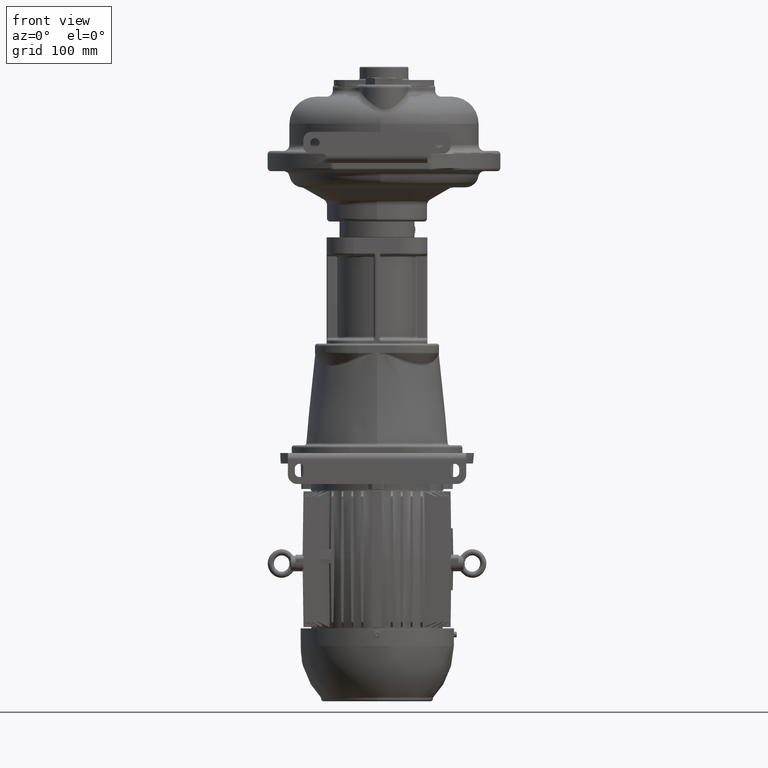
[diagram: clean part render]
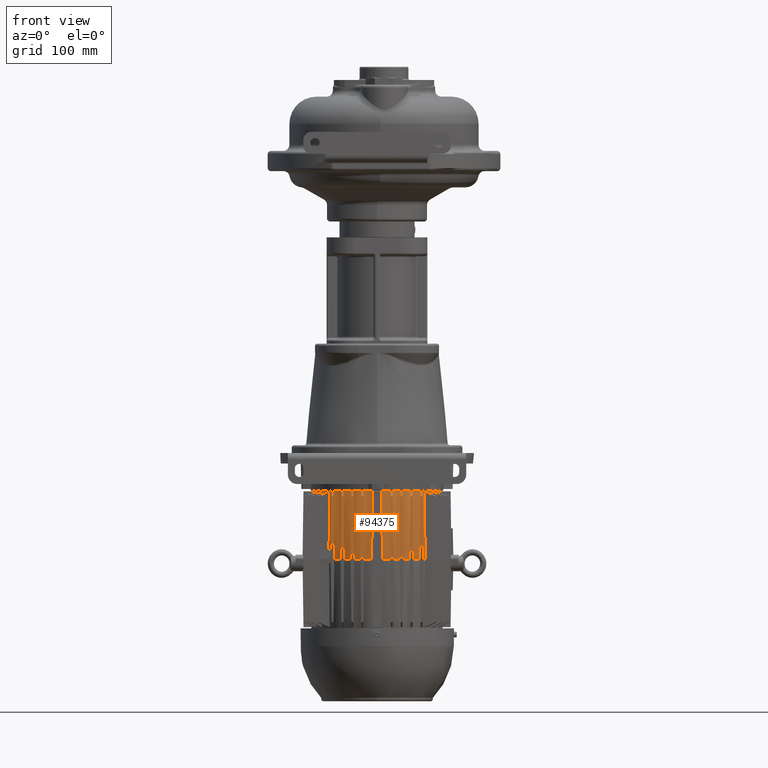
[diagram: same view with one face highlighted and labeled with its STEP entity id]
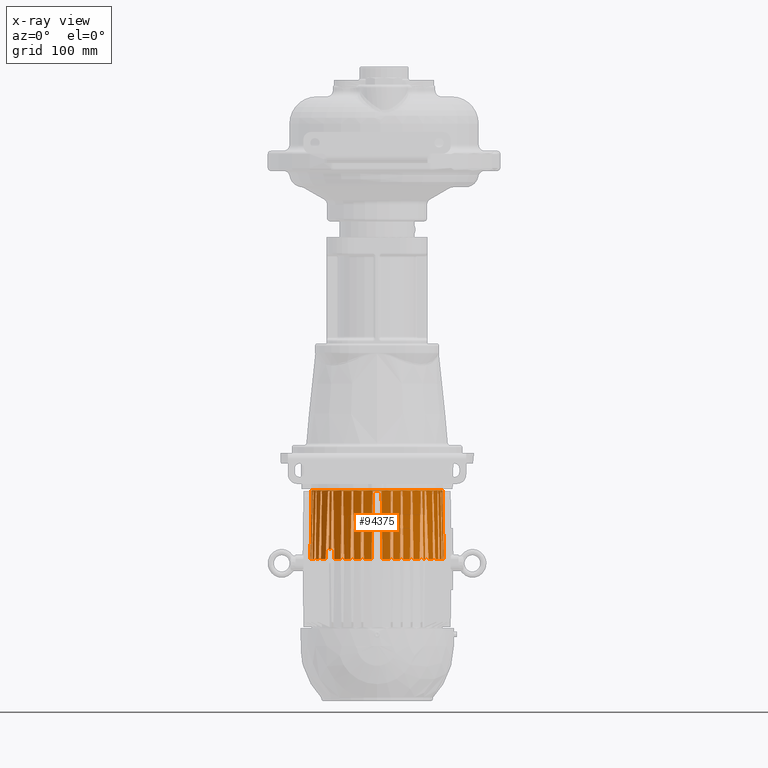
[diagram: x-ray of the same camera — body ghosted, the highlighted face saturated]
A machine part, front view. The second image highlights one B-rep face of the part: STEP entity #94375.
The next image is the same camera in x-ray: the body ghosted, the highlighted face saturated — about 0% of this face is hidden behind the body in this view.
In plain terms, the highlighted conical surface has half-angle 1 deg.
Its self-contained STEP definition (entity closure, byte-faithful):
#3388=CARTESIAN_POINT('',(-7.907279741479E1,3.415E1,-5.1755E2));
#3410=CARTESIAN_POINT('',(-7.907279741479E1,-3.415E1,-5.1755E2));
#3443=CARTESIAN_POINT('',(-4.695E1,-7.221099148330E1,-5.1755E2));
#3491=CARTESIAN_POINT('',(5.975E1,-6.203762802526E1,-5.1755E2));
#3503=CARTESIAN_POINT('',(6.203762802526E1,-5.975E1,-5.1755E2));
#3542=CARTESIAN_POINT('',(8.554957504864E1,-1.E1,-5.1755E2));
#3588=CARTESIAN_POINT('',(7.907279741479E1,3.415E1,-5.1755E2));
#3595=CARTESIAN_POINT('',(7.242031781905E1,4.662646628244E1,-5.1755E2));
#3768=CARTESIAN_POINT('',(0.E0,0.E0,-4.285E2));
#3769=DIRECTION('',(0.E0,0.E0,-1.E0));
#3770=DIRECTION('',(6.960351533574E-1,7.180077055929E-1,0.E0));
#3771=AXIS2_PLACEMENT_3D('',#3768,#3769,#3770);
#27019=CARTESIAN_POINT('',(5.998727688715E1,6.180822277549E1,-5.1755E2));
#27020=CARTESIAN_POINT('',(5.986147562036E1,6.168662273001E1,
-5.075314072305E2));
#27021=CARTESIAN_POINT('',(5.961090800909E1,6.144443021485E1,
-4.875769999875E2));
#27022=CARTESIAN_POINT('',(5.923817437612E1,6.108417666636E1,
-4.578947564084E2));
#27023=CARTESIAN_POINT('',(5.899173791780E1,6.084600603335E1,
-4.382707740820E2));
#27024=CARTESIAN_POINT('',(5.886903501633E1,6.072742239909E1,-4.285E2));
#27026=CARTESIAN_POINT('',(0.E0,0.E0,-5.1755E2));
#27027=DIRECTION('',(0.E0,0.E0,1.E0));
#27028=DIRECTION('',(7.202618427713E-1,6.937022977097E-1,0.E0));
#27029=AXIS2_PLACEMENT_3D('',#27026,#27027,#27028);
#27031=CARTESIAN_POINT('',(6.102020720370E1,5.860456225508E1,-4.3005E2));
#27032=CARTESIAN_POINT('',(6.113180820073E1,5.873019079957E1,
-4.396467656837E2));
#27033=CARTESIAN_POINT('',(6.135597387212E1,5.898254248988E1,
-4.589239136563E2));
#27034=CARTESIAN_POINT('',(6.169509330493E1,5.936433147055E1,
-4.880887774444E2));
#27035=CARTESIAN_POINT('',(6.192312643419E1,5.962107647209E1,
-5.077015305023E2));
#27036=CARTESIAN_POINT('',(6.203762802526E1,5.975E1,-5.1755E2));
#27038=CARTESIAN_POINT('',(0.E0,0.E0,-4.3005E2));
#27039=DIRECTION('',(0.E0,0.E0,1.E0));
#27040=DIRECTION('',(7.475446730937E-1,6.642115338725E-1,0.E0));
#27041=AXIS2_PLACEMENT_3D('',#27038,#27039,#27040);
#27043=CARTESIAN_POINT('',(6.488847226443E1,5.557362868339E1,-4.7755E2));
#27044=CARTESIAN_POINT('',(6.470470052036E1,5.564398465508E1,
-4.721755066675E2));
#27045=CARTESIAN_POINT('',(6.433797869093E1,5.578385237949E1,
-4.614910098977E2));
#27046=CARTESIAN_POINT('',(6.379044026583E1,5.599110823851E1,
-4.456587328971E2));
#27047=CARTESIAN_POINT('',(6.342707193666E1,5.612760785442E1,
-4.352315259674E2));
#27048=CARTESIAN_POINT('',(6.324581552125E1,5.619543774492E1,-4.3005E2));
#27050=CARTESIAN_POINT('',(6.706211516945E1,5.405E1,-5.1755E2));
#27051=CARTESIAN_POINT('',(6.691348231328E1,5.410901575819E1,
-5.130417856826E2));
#27052=CARTESIAN_POINT('',(6.661675135678E1,5.422649065666E1,
-5.040678770946E2));
#27053=CARTESIAN_POINT('',(6.617329900634E1,5.440102621114E1,
-4.907351044623E2));
#27054=CARTESIAN_POINT('',(6.587873977633E1,5.451627928991E1,
-4.819309207020E2));
#27055=CARTESIAN_POINT('',(6.573173579161E1,5.457362868339E1,-4.7755E2));
#27057=CARTESIAN_POINT('',(0.E0,0.E0,-5.1755E2));
#27058=DIRECTION('',(0.E0,0.E0,1.E0));
#27059=DIRECTION('',(8.408057049698E-1,5.413370174764E-1,0.E0));
#27060=AXIS2_PLACEMENT_3D('',#27057,#27058,#27059);
#27062=CARTESIAN_POINT('',(7.130533522862E1,4.553580538681E1,-4.3005E2));
#27063=CARTESIAN_POINT('',(7.142774431091E1,4.565546250635E1,
-4.396500038997E2));
#27064=CARTESIAN_POINT('',(7.167354801017E1,4.589579475990E1,
-4.589314711998E2));
#27065=CARTESIAN_POINT('',(7.204518856201E1,4.625932770336E1,
-4.880964813310E2));
#27066=CARTESIAN_POINT('',(7.229494453114E1,4.650374521757E1,
-5.077048328992E2));
#27067=CARTESIAN_POINT('',(7.242031781905E1,4.662646628244E1,-5.1755E2));
#27069=CARTESIAN_POINT('',(0.E0,0.E0,-4.3005E2));
#27070=DIRECTION('',(0.E0,0.E0,1.E0));
#27071=DIRECTION('',(8.584365573358E-1,5.129197569108E-1,0.E0));
#27072=AXIS2_PLACEMENT_3D('',#27069,#27070,#27071);
#27074=CARTESIAN_POINT('',(7.505775969879E1,4.225E1,-5.1755E2));
#27075=CARTESIAN_POINT('',(7.478495977182E1,4.238033757925E1,
-5.075935111074E2));
#27076=CARTESIAN_POINT('',(7.424119370236E1,4.263896763869E1,
-4.878367584586E2));
#27077=CARTESIAN_POINT('',(7.343125956214E1,4.302072832137E1,
-4.586740563545E2));
#27078=CARTESIAN_POINT('',(7.289497885670E1,4.327121082905E1,
-4.395396952602E2));
#27079=CARTESIAN_POINT('',(7.262779348995E1,4.339543774492E1,-4.3005E2));
#27081=CARTESIAN_POINT('',(0.E0,0.E0,-5.1755E2));
#27082=DIRECTION('',(0.E0,0.E0,1.E0));
#27083=DIRECTION('',(9.180415272464E-1,3.964842421219E-1,0.E0));
#27084=AXIS2_PLACEMENT_3D('',#27081,#27082,#27083);
#27086=CARTESIAN_POINT('',(7.790159994918E1,3.300456225508E1,-4.3005E2));
#27087=CARTESIAN_POINT('',(7.803252242807E1,3.313235933617E1,
-4.398124202145E2));
#27088=CARTESIAN_POINT('',(7.829376367833E1,3.338753278264E1,
-4.593051221663E2));
#27089=CARTESIAN_POINT('',(7.867805108647E1,3.376336865275E1,
-4.880152277839E2));
#27090=CARTESIAN_POINT('',(7.894077279085E1,3.402063399537E1,
-5.076677297015E2));
#27091=CARTESIAN_POINT('',(7.907279741479E1,3.415E1,-5.1755E2));
#27093=CARTESIAN_POINT('',(0.E0,0.E0,-4.3005E2));
#27094=DIRECTION('',(0.E0,0.E0,1.E0));
#27095=DIRECTION('',(9.313538060151E-1,3.641154872030E-1,0.E0));
#27096=AXIS2_PLACEMENT_3D('',#27093,#27094,#27095);
#27098=CARTESIAN_POINT('',(8.081848893073E1,2.978425150904E1,-5.1755E2));
#27099=CARTESIAN_POINT('',(8.059165856828E1,2.989997277558E1,
-5.076490988157E2));
#27100=CARTESIAN_POINT('',(8.013945831416E1,3.012994354378E1,
-4.879664480863E2));
#27101=CARTESIAN_POINT('',(7.946564696526E1,3.047045715194E1,
-4.588025159611E2));
#27102=CARTESIAN_POINT('',(7.901934452361E1,3.069456702317E1,
-4.395947429231E2));
#27103=CARTESIAN_POINT('',(7.879693765521E1,3.080589262548E1,-4.3005E2));
#27105=CARTESIAN_POINT('',(0.E0,0.E0,-5.1755E2));
#27106=DIRECTION('',(0.E0,0.E0,1.E0));
#27107=DIRECTION('',(9.687919684441E-1,2.478752143281E-1,0.E0));
#27108=AXIS2_PLACEMENT_3D('',#27105,#27106,#27107);
#27110=CARTESIAN_POINT('',(8.215677737334E1,2.020456225508E1,-4.3005E2));
#27111=CARTESIAN_POINT('',(8.229834092428E1,2.033015141872E1,
-4.396437573801E2));
#27112=CARTESIAN_POINT('',(8.258244770706E1,2.058245060752E1,
-4.589168947620E2));
#27113=CARTESIAN_POINT('',(8.301151302675E1,2.096424017613E1,
-4.880818034627E2));
#27114=CARTESIAN_POINT('',(8.329953609944E1,2.122103734861E1,
-5.076985418593E2));
#27115=CARTESIAN_POINT('',(8.344403688102E1,2.135E1,-5.1755E2));
#27117=CARTESIAN_POINT('',(0.E0,0.E0,-4.3005E2));
#27118=DIRECTION('',(0.E0,0.E0,1.E0));
#27119=DIRECTION('',(9.776291125538E-1,2.103362029875E-1,0.E0));
#27120=AXIS2_PLACEMENT_3D('',#27117,#27118,#27119);
#27122=CARTESIAN_POINT('',(8.418985801712E1,1.685383385173E1,
-5.019791301684E2));
#27123=CARTESIAN_POINT('',(8.402437614511E1,1.695990948263E1,
-4.938760117365E2));
#27124=CARTESIAN_POINT('',(8.369425993023E1,1.717109188396E1,
-4.777437861327E2));
#27125=CARTESIAN_POINT('',(8.320167439258E1,1.748494206438E1,
-4.537687679281E2));
#27126=CARTESIAN_POINT('',(8.287497026075E1,1.769226026473E1,
-4.379317286725E2));
#27127=CARTESIAN_POINT('',(8.271204748861E1,1.779543774492E1,-4.3005E2));
#27129=CARTESIAN_POINT('',(8.561432432442E1,6.814813433695E0,
-5.034035964757E2));
#27130=CARTESIAN_POINT('',(8.533864922042E1,1.021746928964E1,
-5.031279213717E2));
#27131=CARTESIAN_POINT('',(8.486060539381E1,1.356289837481E1,
-5.026498775451E2));
#27132=CARTESIAN_POINT('',(8.418985801712E1,1.685383385173E1,
-5.019791301684E2));
#27134=CARTESIAN_POINT('',(8.440192240164E1,5.854562255077E0,-4.3005E2));
#27135=CARTESIAN_POINT('',(8.453552810681E1,5.959993447025E0,
-4.381038897346E2));
#27136=CARTESIAN_POINT('',(8.480347949349E1,6.171697912061E0,
-4.542759957899E2));
#27137=CARTESIAN_POINT('',(8.520759936558E1,6.491766775614E0,
-4.787260592569E2));
#27138=CARTESIAN_POINT('',(8.547850381222E1,6.706848955566E0,
-4.951561889861E2));
#27139=CARTESIAN_POINT('',(8.561432432442E1,6.814813433695E0,
-5.034035964757E2));
#27141=CARTESIAN_POINT('',(8.577412522449E1,-6.941900275092E0,
-5.131117614719E2));
#27142=CARTESIAN_POINT('',(8.562023759017E1,-6.819458211412E0,
-5.037584110873E2));
#27143=CARTESIAN_POINT('',(8.531340526007E1,-6.575658822175E0,
-4.851345734755E2));
#27144=CARTESIAN_POINT('',(8.485602474256E1,-6.213234343200E0,
-4.574489641511E2));
#27145=CARTESIAN_POINT('',(8.455297390034E1,-5.973760305290E0,
-4.391555401656E2));
#27146=CARTESIAN_POINT('',(8.440192240164E1,-5.854562255077E0,-4.3005E2));
#27148=CARTESIAN_POINT('',(8.554392303055E1,-9.932999781522E0,
-5.167841839985E2));
#27149=CARTESIAN_POINT('',(8.554358946682E1,-9.929063323211E0,
-5.167391900741E2));
#27150=CARTESIAN_POINT('',(8.554315470757E1,-9.919185901924E0,
-5.166492081636E2));
#27151=CARTESIAN_POINT('',(8.554319806392E1,-9.898372197926E0,
-5.165144432592E2));
#27152=CARTESIAN_POINT('',(8.554393674860E1,-9.871438812300E0,
-5.163793223439E2));
#27153=CARTESIAN_POINT('',(8.554538974881E1,-9.838024512511E0,
-5.162428897954E2));
#27154=CARTESIAN_POINT('',(8.554757672630E1,-9.797912367485E0,
-5.161052857512E2));
#27155=CARTESIAN_POINT('',(8.555050653304E1,-9.750996565411E0,
-5.159668644851E2));
#27156=CARTESIAN_POINT('',(8.555420349561E1,-9.696902292617E0,
-5.158272324971E2));
#27157=CARTESIAN_POINT('',(8.555868453491E1,-9.635367581121E0,
-5.156864499843E2));
#27158=CARTESIAN_POINT('',(8.556398564098E1,-9.565860570069E0,
-5.155441028473E2));
#27159=CARTESIAN_POINT('',(8.557008722271E1,-9.488542037543E0,
-5.154012141406E2));
#27160=CARTESIAN_POINT('',(8.557698709257E1,-9.403262696266E0,
-5.152579175932E2));
#27161=CARTESIAN_POINT('',(8.558478951933E1,-9.308565303651E0,
-5.151124748170E2));
#27162=CARTESIAN_POINT('',(8.559353910931E1,-9.203724959677E0,
-5.149648034001E2));
#27163=CARTESIAN_POINT('',(8.560320991943E1,-9.088785689862E0,
-5.148158252096E2));
#27164=CARTESIAN_POINT('',(8.561384922762E1,-8.962847321755E0,
-5.146651688258E2));
#27165=CARTESIAN_POINT('',(8.562550920211E1,-8.824880502149E0,
-5.145125647504E2));
#27166=CARTESIAN_POINT('',(8.563815524641E1,-8.674788046983E0,
-5.143588138442E2));
#27167=CARTESIAN_POINT('',(8.565181179005E1,-8.511671338423E0,
-5.142038540523E2));
#27168=CARTESIAN_POINT('',(8.566647640937E1,-8.334830151371E0,
-5.140479341661E2));
#27169=CARTESIAN_POINT('',(8.568213951943E1,-8.143514585341E0,
-5.138913072995E2));
#27170=CARTESIAN_POINT('',(8.569877907816E1,-7.936970820188E0,
-5.137342891735E2));
#27171=CARTESIAN_POINT('',(8.571635520964E1,-7.714492423688E0,
-5.135772841088E2));
#27172=CARTESIAN_POINT('',(8.573481060851E1,-7.475402256378E0,
-5.134207607532E2));
#27173=CARTESIAN_POINT('',(8.575406709431E1,-7.219086744275E0,
-5.132652636042E2));
#27174=CARTESIAN_POINT('',(8.576737557819E1,-7.036313696590E0,
-5.131626663032E2));
#27175=CARTESIAN_POINT('',(8.577412522449E1,-6.941900275092E0,
-5.131117614719E2));
#27177=CARTESIAN_POINT('',(8.554957504864E1,-1.000000000002E1,
-5.175500000003E2));
#27178=CARTESIAN_POINT('',(8.554769950172E1,-9.977666588443E0,
-5.172947279378E2));
#27179=CARTESIAN_POINT('',(8.554581549623E1,-9.955333182282E0,
-5.170394559373E2));
#27180=CARTESIAN_POINT('',(8.554392303048E1,-9.932999781543E0,
-5.167841839987E2));
#27182=CARTESIAN_POINT('',(0.E0,0.E0,-5.1755E2));
#27183=DIRECTION('',(0.E0,0.E0,1.E0));
#27184=DIRECTION('',(9.811381555008E-1,-1.933078369350E-1,0.E0));
#27185=AXIS2_PLACEMENT_3D('',#27182,#27183,#27184);
#27187=CARTESIAN_POINT('',(8.271204748861E1,-1.779543774492E1,-4.3005E2));
#27188=CARTESIAN_POINT('',(8.290964950036E1,-1.767029822400E1,
-4.396094091685E2));
#27189=CARTESIAN_POINT('',(8.330612213387E1,-1.741859866486E1,
-4.588367408349E2));
#27190=CARTESIAN_POINT('',(8.390455387373E1,-1.703681794310E1,
-4.880009737251E2));
#27191=CARTESIAN_POINT('',(8.430606117239E1,-1.677941617648E1,
-5.076638970738E2));
#27192=CARTESIAN_POINT('',(8.450743926425E1,-1.665E1,-5.1755E2));
#27194=CARTESIAN_POINT('',(8.344403688102E1,-2.135E1,-5.1755E2));
#27195=CARTESIAN_POINT('',(8.329953609825E1,-2.122103734755E1,
-5.076985417786E2));
#27196=CARTESIAN_POINT('',(8.301151302398E1,-2.096424017366E1,
-4.880818032744E2));
#27197=CARTESIAN_POINT('',(8.258244770429E1,-2.058245060507E1,
-4.589168945744E2));
#27198=CARTESIAN_POINT('',(8.229834092309E1,-2.033015141767E1,
-4.396437572997E2));
#27199=CARTESIAN_POINT('',(8.215677737334E1,-2.020456225508E1,-4.3005E2));
#27201=CARTESIAN_POINT('',(0.E0,0.E0,-5.1755E2));
#27202=DIRECTION('',(0.E0,0.E0,1.E0));
#27203=DIRECTION('',(9.397302046939E-1,-3.419168647289E-1,0.E0));
#27204=AXIS2_PLACEMENT_3D('',#27201,#27202,#27203);
#27206=CARTESIAN_POINT('',(7.887889193877E1,-3.059543774492E1,-4.3005E2));
#27207=CARTESIAN_POINT('',(7.910579189013E1,-3.047063458265E1,
-4.395837147280E2));
#27208=CARTESIAN_POINT('',(7.956108451027E1,-3.021938358620E1,
-4.587767806866E2));
#27209=CARTESIAN_POINT('',(8.024837594124E1,-2.983760984149E1,
-4.879404805996E2));
#27210=CARTESIAN_POINT('',(8.070956509475E1,-2.957975559766E1,
-5.076379686864E2));
#27211=CARTESIAN_POINT('',(8.094088763413E1,-2.945E1,-5.1755E2));
#27213=CARTESIAN_POINT('',(7.907279741479E1,-3.415E1,-5.1755E2));
#27214=CARTESIAN_POINT('',(7.894077659717E1,-3.402063772503E1,
-5.076680146107E2));
#27215=CARTESIAN_POINT('',(7.867805977585E1,-3.376337715232E1,
-4.880158770656E2));
#27216=CARTESIAN_POINT('',(7.829375462179E1,-3.338752392683E1,
-4.593044456712E2));
#27217=CARTESIAN_POINT('',(7.803251845079E1,-3.313235545383E1,
-4.398121236426E2));
#27218=CARTESIAN_POINT('',(7.790159994918E1,-3.300456225508E1,-4.3005E2));
#27220=CARTESIAN_POINT('',(0.E0,0.E0,-5.1755E2));
#27221=DIRECTION('',(0.E0,0.E0,1.E0));
#27222=DIRECTION('',(8.714266169706E-1,-4.905258925228E-1,0.E0));
#27223=AXIS2_PLACEMENT_3D('',#27220,#27221,#27222);
#27225=CARTESIAN_POINT('',(7.262779348995E1,-4.339543774492E1,-4.3005E2));
#27226=CARTESIAN_POINT('',(7.289497888302E1,-4.327121081681E1,
-4.395396961949E2));
#27227=CARTESIAN_POINT('',(7.343125962308E1,-4.302072829281E1,
-4.586740585358E2));
#27228=CARTESIAN_POINT('',(7.424119376308E1,-4.263896760990E1,
-4.878367606578E2));
#27229=CARTESIAN_POINT('',(7.478495979764E1,-4.238033756691E1,
-5.075935120501E2));
#27230=CARTESIAN_POINT('',(7.505775969879E1,-4.225E1,-5.1755E2));
#27232=CARTESIAN_POINT('',(7.221099148330E1,-4.695E1,-5.1755E2));
#27233=CARTESIAN_POINT('',(7.208857691212E1,-4.681980913733E1,
-5.076047187887E2));
#27234=CARTESIAN_POINT('',(7.184555573994E1,-4.656143046671E1,
-4.878671697339E2));
#27235=CARTESIAN_POINT('',(7.149075804587E1,-4.618443890118E1,
-4.590687805332E2));
#27236=CARTESIAN_POINT('',(7.125212093132E1,-4.593102759440E1,
-4.397106884482E2));
#27237=CARTESIAN_POINT('',(7.113299150825E1,-4.580456225508E1,-4.3005E2));
#27239=CARTESIAN_POINT('',(0.E0,0.E0,-5.1755E2));
#27240=DIRECTION('',(0.E0,0.E0,1.E0));
#27241=DIRECTION('',(7.690946324295E-1,-6.391349203166E-1,0.E0));
#27242=AXIS2_PLACEMENT_3D('',#27239,#27240,#27241);
#27244=CARTESIAN_POINT('',(6.324581552125E1,-5.619543774492E1,-4.3005E2));
#27245=CARTESIAN_POINT('',(6.357472518665E1,-5.607235296175E1,
-4.394524477330E2));
#27246=CARTESIAN_POINT('',(6.423542555407E1,-5.582339369703E1,
-4.584704482826E2));
#27247=CARTESIAN_POINT('',(6.523463521474E1,-5.544166480336E1,
-4.876307220244E2));
#27248=CARTESIAN_POINT('',(6.590644918931E1,-5.518149367719E1,
-5.075051967751E2));
#27249=CARTESIAN_POINT('',(6.624369623595E1,-5.505E1,-5.1755E2));
#27251=CARTESIAN_POINT('',(6.203762802526E1,-5.975E1,-5.1755E2));
#27252=CARTESIAN_POINT('',(6.192312643417E1,-5.962107647206E1,
-5.077015305004E2));
#27253=CARTESIAN_POINT('',(6.169509330487E1,-5.936433147049E1,
-4.880887774400E2));
#27254=CARTESIAN_POINT('',(6.135597387207E1,-5.898254248983E1,
-4.589239136519E2));
#27255=CARTESIAN_POINT('',(6.113180820071E1,-5.873019079955E1,
-4.396467656818E2));
#27256=CARTESIAN_POINT('',(6.102020720370E1,-5.860456225508E1,-4.3005E2));
#27258=CARTESIAN_POINT('',(0.E0,0.E0,-5.1755E2));
#27259=DIRECTION('',(0.E0,0.E0,1.E0));
#27260=DIRECTION('',(6.937022977097E-1,-7.202618427713E-1,0.E0));
#27261=AXIS2_PLACEMENT_3D('',#27258,#27259,#27260);
#27263=CARTESIAN_POINT('',(5.860456225508E1,-6.102020720370E1,-4.3005E2));
#27264=CARTESIAN_POINT('',(5.873019079957E1,-6.113180820073E1,
-4.396467656837E2));
#27265=CARTESIAN_POINT('',(5.898254248988E1,-6.135597387212E1,
-4.589239136563E2));
#27266=CARTESIAN_POINT('',(5.936433147055E1,-6.169509330493E1,
-4.880887774444E2));
#27267=CARTESIAN_POINT('',(5.962107647209E1,-6.192312643419E1,
-5.077015305023E2));
#27268=CARTESIAN_POINT('',(5.975E1,-6.203762802526E1,-5.1755E2));
#27270=CARTESIAN_POINT('',(5.505E1,-6.624369623595E1,-5.1755E2));
#27271=CARTESIAN_POINT('',(5.518149370267E1,-6.590644912395E1,
-5.075051948283E2));
#27272=CARTESIAN_POINT('',(5.544166486282E1,-6.523463506049E1,
-4.876307174827E2));
#27273=CARTESIAN_POINT('',(5.582339375576E1,-6.423542539900E1,
-4.584704437965E2));
#27274=CARTESIAN_POINT('',(5.607235298691E1,-6.357472511940E1,
-4.394524458107E2));
#27275=CARTESIAN_POINT('',(5.619543774492E1,-6.324581552125E1,-4.3005E2));
#27277=CARTESIAN_POINT('',(0.E0,0.E0,-5.1755E2));
#27278=DIRECTION('',(0.E0,0.E0,1.E0));
#27279=DIRECTION('',(5.450932699158E-1,-8.383754094035E-1,0.E0));
#27280=AXIS2_PLACEMENT_3D('',#27277,#27278,#27279);
#27282=CARTESIAN_POINT('',(4.580456225508E1,-7.113299150825E1,-4.3005E2));
#27283=CARTESIAN_POINT('',(4.593102528030E1,-7.125211875146E1,
-4.397105116741E2));
#27284=CARTESIAN_POINT('',(4.618443333462E1,-7.149075280291E1,
-4.590683553035E2));
#27285=CARTESIAN_POINT('',(4.656141062214E1,-7.184553706884E1,
-4.878656538071E2));
#27286=CARTESIAN_POINT('',(4.681980056095E1,-7.208856884800E1,
-5.076040636386E2));
#27287=CARTESIAN_POINT('',(4.695E1,-7.221099148330E1,-5.1755E2));
#27289=CARTESIAN_POINT('',(0.E0,0.E0,-4.3005E2));
#27290=DIRECTION('',(0.E0,0.E0,1.E0));
#27291=DIRECTION('',(5.129197569108E-1,-8.584365573358E-1,0.E0));
#27292=AXIS2_PLACEMENT_3D('',#27289,#27290,#27291);
#27294=CARTESIAN_POINT('',(4.225E1,-7.505775969879E1,-5.1755E2));
#27295=CARTESIAN_POINT('',(4.238033757925E1,-7.478495977182E1,
-5.075935111074E2));
#27296=CARTESIAN_POINT('',(4.263896763869E1,-7.424119370236E1,
-4.878367584586E2));
#27297=CARTESIAN_POINT('',(4.302072832137E1,-7.343125956214E1,
-4.586740563545E2));
#27298=CARTESIAN_POINT('',(4.327121082905E1,-7.289497885670E1,
-4.395396952602E2));
#27299=CARTESIAN_POINT('',(4.339543774492E1,-7.262779348995E1,-4.3005E2));
#27301=CARTESIAN_POINT('',(0.E0,0.E0,-5.1755E2));
#27302=DIRECTION('',(0.E0,0.E0,1.E0));
#27303=DIRECTION('',(3.964842421220E-1,-9.180415272464E-1,0.E0));
#27304=AXIS2_PLACEMENT_3D('',#27301,#27302,#27303);
#27306=CARTESIAN_POINT('',(3.300456225508E1,-7.790159994918E1,-4.3005E2));
#27307=CARTESIAN_POINT('',(3.313235933618E1,-7.803252242808E1,
-4.398124202151E2));
#27308=CARTESIAN_POINT('',(3.338753278266E1,-7.829376367835E1,
-4.593051221678E2));
#27309=CARTESIAN_POINT('',(3.376336865277E1,-7.867805108649E1,
-4.880152277855E2));
#27310=CARTESIAN_POINT('',(3.402063399538E1,-7.894077279086E1,
-5.076677297022E2));
#27311=CARTESIAN_POINT('',(3.415E1,-7.907279741479E1,-5.1755E2));
#27313=CARTESIAN_POINT('',(0.E0,0.E0,-4.3005E2));
#27314=DIRECTION('',(0.E0,0.E0,1.E0));
#27315=DIRECTION('',(3.616279799492E-1,-9.323224786081E-1,0.E0));
#27316=AXIS2_PLACEMENT_3D('',#27313,#27314,#27315);
#27318=CARTESIAN_POINT('',(2.945E1,-8.094088763413E1,-5.1755E2));
#27319=CARTESIAN_POINT('',(2.957975560468E1,-8.070956508224E1,
-5.076379681504E2));
#27320=CARTESIAN_POINT('',(2.983760985786E1,-8.024837591189E1,
-4.879404793491E2));
#27321=CARTESIAN_POINT('',(3.021938360247E1,-7.956108448086E1,
-4.587767794439E2));
#27322=CARTESIAN_POINT('',(3.047063458962E1,-7.910579187745E1,
-4.395837141954E2));
#27323=CARTESIAN_POINT('',(3.059543774492E1,-7.887889193877E1,-4.3005E2));
#27325=CARTESIAN_POINT('',(0.E0,0.E0,-5.1755E2));
#27326=DIRECTION('',(0.E0,0.E0,1.E0));
#27327=DIRECTION('',(2.478752143281E-1,-9.687919684441E-1,0.E0));
#27328=AXIS2_PLACEMENT_3D('',#27325,#27326,#27327);
#27330=CARTESIAN_POINT('',(2.020456225508E1,-8.215677737334E1,-4.3005E2));
#27331=CARTESIAN_POINT('',(2.033015141872E1,-8.229834092428E1,
-4.396437573801E2));
#27332=CARTESIAN_POINT('',(2.058245060752E1,-8.258244770706E1,
-4.589168947620E2));
#27333=CARTESIAN_POINT('',(2.096424017613E1,-8.301151302675E1,
-4.880818034627E2));
#27334=CARTESIAN_POINT('',(2.122103734861E1,-8.329953609944E1,
-5.076985418593E2));
#27335=CARTESIAN_POINT('',(2.135E1,-8.344403688102E1,-5.1755E2));
#27337=CARTESIAN_POINT('',(0.E0,0.E0,-4.3005E2));
#27338=DIRECTION('',(0.E0,0.E0,1.E0));
#27339=DIRECTION('',(2.103362029875E-1,-9.776291125538E-1,0.E0));
#27340=AXIS2_PLACEMENT_3D('',#27337,#27338,#27339);
#27342=CARTESIAN_POINT('',(1.665E1,-8.450743926425E1,-5.1755E2));
#27343=CARTESIAN_POINT('',(1.677941618079E1,-8.430606116569E1,
-5.076638967448E2));
#27344=CARTESIAN_POINT('',(1.703681795315E1,-8.390455385803E1,
-4.880009729574E2));
#27345=CARTESIAN_POINT('',(1.741859867486E1,-8.330612211815E1,
-4.588367400711E2));
#27346=CARTESIAN_POINT('',(1.767029822829E1,-8.290964949360E1,
-4.396094088412E2));
#27347=CARTESIAN_POINT('',(1.779543774492E1,-8.271204748861E1,-4.3005E2));
#27349=CARTESIAN_POINT('',(0.E0,0.E0,-5.1755E2));
#27350=DIRECTION('',(0.E0,0.E0,1.E0));
#27351=DIRECTION('',(8.127056207478E-2,-9.966920766917E-1,0.E0));
#27352=AXIS2_PLACEMENT_3D('',#27349,#27350,#27351);
#27354=CARTESIAN_POINT('',(5.854562255077E0,-8.440192240164E1,-4.3005E2));
#27355=CARTESIAN_POINT('',(5.980039717337E0,-8.456093136776E1,
-4.396352245103E2));
#27356=CARTESIAN_POINT('',(6.232189945571E0,-8.488000065445E1,
-4.588969827930E2));
#27357=CARTESIAN_POINT('',(6.613977388456E0,-8.536171279263E1,
-4.880617291098E2));
#27358=CARTESIAN_POINT('',(6.870924714441E0,-8.568497595937E1,
-5.076899377343E2));
#27359=CARTESIAN_POINT('',(7.E0,-8.584713035973E1,-5.1755E2));
#27361=CARTESIAN_POINT('',(-7.E0,-8.584713035973E1,-5.1755E2));
#27362=CARTESIAN_POINT('',(-6.870924712591E0,-8.568497595705E1,
-5.076899375930E2));
#27363=CARTESIAN_POINT('',(-6.613977384141E0,-8.536171278719E1,
-4.880617287803E2));
#27364=CARTESIAN_POINT('',(-6.232189941273E0,-8.488000064902E1,
-4.588969824647E2));
#27365=CARTESIAN_POINT('',(-5.980039715494E0,-8.456093136543E1,
-4.396352243697E2));
#27366=CARTESIAN_POINT('',(-5.854562255077E0,-8.440192240164E1,-4.3005E2));
#27368=CARTESIAN_POINT('',(0.E0,0.E0,-5.1755E2));
#27369=DIRECTION('',(0.E0,0.E0,1.E0));
#27370=DIRECTION('',(-1.933078369350E-1,-9.811381555008E-1,0.E0));
#27371=AXIS2_PLACEMENT_3D('',#27368,#27369,#27370);
#27373=CARTESIAN_POINT('',(-1.779543774492E1,-8.271204748861E1,-4.3005E2));
#27374=CARTESIAN_POINT('',(-1.767029822400E1,-8.290964950036E1,
-4.396094091685E2));
#27375=CARTESIAN_POINT('',(-1.741859866486E1,-8.330612213387E1,
-4.588367408349E2));
#27376=CARTESIAN_POINT('',(-1.703681794310E1,-8.390455387373E1,
-4.880009737251E2));
#27377=CARTESIAN_POINT('',(-1.677941617648E1,-8.430606117239E1,
-5.076638970738E2));
#27378=CARTESIAN_POINT('',(-1.665E1,-8.450743926425E1,-5.1755E2));
#27380=CARTESIAN_POINT('',(-2.135E1,-8.344403688102E1,-5.1755E2));
#27381=CARTESIAN_POINT('',(-2.122103734755E1,-8.329953609825E1,
-5.076985417786E2));
#27382=CARTESIAN_POINT('',(-2.096424017366E1,-8.301151302398E1,
-4.880818032744E2));
#27383=CARTESIAN_POINT('',(-2.058245060507E1,-8.258244770429E1,
-4.589168945744E2));
#27384=CARTESIAN_POINT('',(-2.033015141767E1,-8.229834092309E1,
-4.396437572997E2));
#27385=CARTESIAN_POINT('',(-2.020456225508E1,-8.215677737334E1,-4.3005E2));
#27387=CARTESIAN_POINT('',(0.E0,0.E0,-5.1755E2));
#27388=DIRECTION('',(0.E0,0.E0,1.E0));
#27389=DIRECTION('',(-3.419168647289E-1,-9.397302046939E-1,0.E0));
#27390=AXIS2_PLACEMENT_3D('',#27387,#27388,#27389);
#27392=CARTESIAN_POINT('',(-3.059543774492E1,-7.887889193877E1,-4.3005E2));
#27393=CARTESIAN_POINT('',(-3.047063458265E1,-7.910579189013E1,
-4.395837147280E2));
#27394=CARTESIAN_POINT('',(-3.021938358620E1,-7.956108451027E1,
-4.587767806866E2));
#27395=CARTESIAN_POINT('',(-2.983760984149E1,-8.024837594124E1,
-4.879404805996E2));
#27396=CARTESIAN_POINT('',(-2.957975559766E1,-8.070956509475E1,
-5.076379686864E2));
#27397=CARTESIAN_POINT('',(-2.945E1,-8.094088763413E1,-5.1755E2));
#27399=CARTESIAN_POINT('',(-3.415E1,-7.907279741479E1,-5.1755E2));
#27400=CARTESIAN_POINT('',(-3.402063772503E1,-7.894077659716E1,
-5.076680146102E2));
#27401=CARTESIAN_POINT('',(-3.376337715230E1,-7.867805977583E1,
-4.880158770645E2));
#27402=CARTESIAN_POINT('',(-3.338752392682E1,-7.829375462178E1,
-4.593044456700E2));
#27403=CARTESIAN_POINT('',(-3.313235545382E1,-7.803251845078E1,
-4.398121236421E2));
#27404=CARTESIAN_POINT('',(-3.300456225508E1,-7.790159994918E1,-4.3005E2));
#27406=CARTESIAN_POINT('',(0.E0,0.E0,-5.1755E2));
#27407=DIRECTION('',(0.E0,0.E0,1.E0));
#27408=DIRECTION('',(-4.905258925228E-1,-8.714266169706E-1,0.E0));
#27409=AXIS2_PLACEMENT_3D('',#27406,#27407,#27408);
#27411=CARTESIAN_POINT('',(-4.339543774492E1,-7.262779348995E1,-4.3005E2));
#27412=CARTESIAN_POINT('',(-4.327121081681E1,-7.289497888302E1,
-4.395396961949E2));
#27413=CARTESIAN_POINT('',(-4.302072829281E1,-7.343125962308E1,
-4.586740585358E2));
#27414=CARTESIAN_POINT('',(-4.263896760990E1,-7.424119376308E1,
-4.878367606578E2));
#27415=CARTESIAN_POINT('',(-4.238033756691E1,-7.478495979764E1,
-5.075935120501E2));
#27416=CARTESIAN_POINT('',(-4.225E1,-7.505775969879E1,-5.1755E2));
#27418=CARTESIAN_POINT('',(-4.695E1,-7.221099148330E1,-5.1755E2));
#27419=CARTESIAN_POINT('',(-4.681980913733E1,-7.208857691212E1,
-5.076047187887E2));
#27420=CARTESIAN_POINT('',(-4.656143046671E1,-7.184555573994E1,
-4.878671697339E2));
#27421=CARTESIAN_POINT('',(-4.618443890118E1,-7.149075804587E1,
-4.590687805332E2));
#27422=CARTESIAN_POINT('',(-4.593102759440E1,-7.125212093132E1,
-4.397106884482E2));
#27423=CARTESIAN_POINT('',(-4.580456225508E1,-7.113299150825E1,-4.3005E2));
#27425=CARTESIAN_POINT('',(0.E0,0.E0,-5.1755E2));
#27426=DIRECTION('',(0.E0,0.E0,1.E0));
#27427=DIRECTION('',(-6.391349203166E-1,-7.690946324295E-1,0.E0));
#27428=AXIS2_PLACEMENT_3D('',#27425,#27426,#27427);
#27430=CARTESIAN_POINT('',(-5.619543774492E1,-6.324581552125E1,-4.3005E2));
#27431=CARTESIAN_POINT('',(-5.607235296175E1,-6.357472518665E1,
-4.394524477330E2));
#27432=CARTESIAN_POINT('',(-5.582339369703E1,-6.423542555407E1,
-4.584704482826E2));
#27433=CARTESIAN_POINT('',(-5.544166480336E1,-6.523463521474E1,
-4.876307220244E2));
#27434=CARTESIAN_POINT('',(-5.518149367719E1,-6.590644918931E1,
-5.075051967751E2));
#27435=CARTESIAN_POINT('',(-5.505E1,-6.624369623595E1,-5.1755E2));
#27437=CARTESIAN_POINT('',(0.E0,0.E0,-4.3005E2));
#27438=DIRECTION('',(0.E0,0.E0,1.E0));
#27439=DIRECTION('',(-6.926865907524E-1,-7.212387170638E-1,0.E0));
#27440=AXIS2_PLACEMENT_3D('',#27437,#27438,#27439);
#27442=CARTESIAN_POINT('',(-5.957982067790E1,-6.188648315089E1,-5.0455E2));
#27443=CARTESIAN_POINT('',(-5.947025957250E1,-6.178917474635E1,
-4.961806261388E2));
#27444=CARTESIAN_POINT('',(-5.925193690481E1,-6.159526171969E1,
-4.795029555207E2));
#27445=CARTESIAN_POINT('',(-5.892686536802E1,-6.130651596698E1,
-4.546707377990E2));
#27446=CARTESIAN_POINT('',(-5.871173164898E1,-6.111541017894E1,
-4.382366709982E2));
#27447=CARTESIAN_POINT('',(-5.860456225508E1,-6.102020720370E1,-4.3005E2));
#27449=CARTESIAN_POINT('',(-6.102020720370E1,-5.860456225508E1,-4.3005E2));
#27450=CARTESIAN_POINT('',(-6.111541017895E1,-5.871173164900E1,
-4.382366709994E2));
#27451=CARTESIAN_POINT('',(-6.130651596701E1,-5.892686536806E1,
-4.546707378017E2));
#27452=CARTESIAN_POINT('',(-6.159526171972E1,-5.925193690484E1,
-4.795029555235E2));
#27453=CARTESIAN_POINT('',(-6.178917474636E1,-5.947025957252E1,
-4.961806261400E2));
#27454=CARTESIAN_POINT('',(-6.188648315089E1,-5.957982067790E1,-5.0455E2));
#27456=CARTESIAN_POINT('',(0.E0,0.E0,-4.3005E2));
#27457=DIRECTION('',(0.E0,0.E0,1.E0));
#27458=DIRECTION('',(-7.475446730937E-1,-6.642115338725E-1,0.E0));
#27459=AXIS2_PLACEMENT_3D('',#27456,#27457,#27458);
#27461=CARTESIAN_POINT('',(-6.624369623595E1,-5.505E1,-5.1755E2));
#27462=CARTESIAN_POINT('',(-6.590644912395E1,-5.518149370267E1,
-5.075051948283E2));
#27463=CARTESIAN_POINT('',(-6.523463506049E1,-5.544166486282E1,
-4.876307174827E2));
#27464=CARTESIAN_POINT('',(-6.423542539900E1,-5.582339375576E1,
-4.584704437965E2));
#27465=CARTESIAN_POINT('',(-6.357472511940E1,-5.607235298691E1,
-4.394524458107E2));
#27466=CARTESIAN_POINT('',(-6.324581552125E1,-5.619543774492E1,-4.3005E2));
#27468=CARTESIAN_POINT('',(0.E0,0.E0,-5.1755E2));
#27469=DIRECTION('',(0.E0,0.E0,1.E0));
#27470=DIRECTION('',(-8.383754094035E-1,-5.450932699158E-1,0.E0));
#27471=AXIS2_PLACEMENT_3D('',#27468,#27469,#27470);
#27473=CARTESIAN_POINT('',(-7.113299150825E1,-4.580456225508E1,-4.3005E2));
#27474=CARTESIAN_POINT('',(-7.125211875146E1,-4.593102528030E1,
-4.397105116741E2));
#27475=CARTESIAN_POINT('',(-7.149075280291E1,-4.618443333462E1,
-4.590683553035E2));
#27476=CARTESIAN_POINT('',(-7.184553706884E1,-4.656141062214E1,
-4.878656538071E2));
#27477=CARTESIAN_POINT('',(-7.208856884800E1,-4.681980056095E1,
-5.076040636386E2));
#27478=CARTESIAN_POINT('',(-7.221099148330E1,-4.695E1,-5.1755E2));
#27480=CARTESIAN_POINT('',(0.E0,0.E0,-4.3005E2));
#27481=DIRECTION('',(0.E0,0.E0,1.E0));
#27482=DIRECTION('',(-8.584365573358E-1,-5.129197569108E-1,0.E0));
#27483=AXIS2_PLACEMENT_3D('',#27480,#27481,#27482);
#27485=CARTESIAN_POINT('',(-7.505775969879E1,-4.225E1,-5.1755E2));
#27486=CARTESIAN_POINT('',(-7.478495977182E1,-4.238033757925E1,
-5.075935111074E2));
#27487=CARTESIAN_POINT('',(-7.424119370236E1,-4.263896763869E1,
-4.878367584586E2));
#27488=CARTESIAN_POINT('',(-7.343125956214E1,-4.302072832137E1,
-4.586740563545E2));
#27489=CARTESIAN_POINT('',(-7.289497885670E1,-4.327121082905E1,
-4.395396952602E2));
#27490=CARTESIAN_POINT('',(-7.262779348995E1,-4.339543774492E1,-4.3005E2));
#27492=CARTESIAN_POINT('',(0.E0,0.E0,-5.1755E2));
#27493=DIRECTION('',(0.E0,0.E0,1.E0));
#27494=DIRECTION('',(-9.180415272464E-1,-3.964842421220E-1,0.E0));
#27495=AXIS2_PLACEMENT_3D('',#27492,#27493,#27494);
#27497=CARTESIAN_POINT('',(-7.790159994918E1,-3.300456225508E1,-4.3005E2));
#27498=CARTESIAN_POINT('',(-7.803252242808E1,-3.313235933617E1,
-4.398124202149E2));
#27499=CARTESIAN_POINT('',(-7.829376367834E1,-3.338753278265E1,
-4.593051221673E2));
#27500=CARTESIAN_POINT('',(-7.867805108649E1,-3.376336865277E1,
-4.880152277850E2));
#27501=CARTESIAN_POINT('',(-7.894077279086E1,-3.402063399537E1,
-5.076677297019E2));
#27502=CARTESIAN_POINT('',(-7.907279741479E1,-3.415E1,-5.1755E2));
#27504=CARTESIAN_POINT('',(0.E0,0.E0,-4.3005E2));
#27505=DIRECTION('',(0.E0,0.E0,1.E0));
#27506=DIRECTION('',(-9.323224786081E-1,-3.616279799492E-1,0.E0));
#27507=AXIS2_PLACEMENT_3D('',#27504,#27505,#27506);
#27509=CARTESIAN_POINT('',(-8.094088763413E1,-2.945E1,-5.1755E2));
#27510=CARTESIAN_POINT('',(-8.070956508224E1,-2.957975560468E1,
-5.076379681504E2));
#27511=CARTESIAN_POINT('',(-8.024837591189E1,-2.983760985786E1,
-4.879404793491E2));
#27512=CARTESIAN_POINT('',(-7.956108448086E1,-3.021938360247E1,
-4.587767794439E2));
#27513=CARTESIAN_POINT('',(-7.910579187746E1,-3.047063458962E1,
-4.395837141954E2));
#27514=CARTESIAN_POINT('',(-7.887889193877E1,-3.059543774492E1,-4.3005E2));
#27516=CARTESIAN_POINT('',(0.E0,0.E0,-5.1755E2));
#27517=DIRECTION('',(0.E0,0.E0,1.E0));
#27518=DIRECTION('',(-9.687919684441E-1,-2.478752143281E-1,0.E0));
#27519=AXIS2_PLACEMENT_3D('',#27516,#27517,#27518);
#27521=CARTESIAN_POINT('',(-8.215677737334E1,-2.020456225508E1,-4.3005E2));
#27522=CARTESIAN_POINT('',(-8.229834092428E1,-2.033015141872E1,
-4.396437573801E2));
#27523=CARTESIAN_POINT('',(-8.258244770706E1,-2.058245060752E1,
-4.589168947620E2));
#27524=CARTESIAN_POINT('',(-8.301151302675E1,-2.096424017613E1,
-4.880818034627E2));
#27525=CARTESIAN_POINT('',(-8.329953609944E1,-2.122103734861E1,
-5.076985418593E2));
#27526=CARTESIAN_POINT('',(-8.344403688102E1,-2.135E1,-5.1755E2));
#27528=CARTESIAN_POINT('',(0.E0,0.E0,-4.3005E2));
#27529=DIRECTION('',(0.E0,0.E0,1.E0));
#27530=DIRECTION('',(-9.776291125538E-1,-2.103362029875E-1,0.E0));
#27531=AXIS2_PLACEMENT_3D('',#27528,#27529,#27530);
#27533=CARTESIAN_POINT('',(-8.450743926425E1,-1.665E1,-5.1755E2));
#27534=CARTESIAN_POINT('',(-8.430606116569E1,-1.677941618079E1,
-5.076638967448E2));
#27535=CARTESIAN_POINT('',(-8.390455385803E1,-1.703681795315E1,
-4.880009729574E2));
#27536=CARTESIAN_POINT('',(-8.330612211815E1,-1.741859867486E1,
-4.588367400711E2));
#27537=CARTESIAN_POINT('',(-8.290964949360E1,-1.767029822829E1,
-4.396094088412E2));
#27538=CARTESIAN_POINT('',(-8.271204748861E1,-1.779543774492E1,-4.3005E2));
#27540=CARTESIAN_POINT('',(0.E0,0.E0,-5.1755E2));
#27541=DIRECTION('',(0.E0,0.E0,1.E0));
#27542=DIRECTION('',(-9.932374356372E-1,-1.161008029640E-1,0.E0));
#27543=AXIS2_PLACEMENT_3D('',#27540,#27541,#27542);
#27545=CARTESIAN_POINT('',(-8.554392303048E1,-9.932999781543E0,
-5.167841839987E2));
#27546=CARTESIAN_POINT('',(-8.554581549623E1,-9.955333182282E0,
-5.170394559373E2));
#27547=CARTESIAN_POINT('',(-8.554769950172E1,-9.977666588443E0,
-5.172947279378E2));
#27548=CARTESIAN_POINT('',(-8.554957504864E1,-1.000000000002E1,
-5.175500000003E2));
#27550=CARTESIAN_POINT('',(-8.440192240164E1,-5.854562255077E0,-4.3005E2));
#27551=CARTESIAN_POINT('',(-8.455297390234E1,-5.973760306868E0,
-4.391555402862E2));
#27552=CARTESIAN_POINT('',(-8.485602474721E1,-6.213234346882E0,
-4.574489644325E2));
#27553=CARTESIAN_POINT('',(-8.531340526474E1,-6.575658825873E0,
-4.851345737579E2));
#27554=CARTESIAN_POINT('',(-8.562023759215E1,-6.819458212993E0,
-5.037584112083E2));
#27555=CARTESIAN_POINT('',(-8.577412522447E1,-6.941900275089E0,
-5.131117614719E2));
#27557=CARTESIAN_POINT('',(-8.577412522448E1,6.941900275188E0,
-5.131117614719E2));
#27558=CARTESIAN_POINT('',(-8.562023759016E1,6.819458211507E0,
-5.037584110873E2));
#27559=CARTESIAN_POINT('',(-8.531340526008E1,6.575658822131E0,
-4.851345734755E2));
#27560=CARTESIAN_POINT('',(-8.485602474255E1,6.213234343212E0,
-4.574489641511E2));
#27561=CARTESIAN_POINT('',(-8.455297390034E1,5.973760305290E0,
-4.391555401656E2));
#27562=CARTESIAN_POINT('',(-8.440192240164E1,5.854562255077E0,-4.3005E2));
#27564=CARTESIAN_POINT('',(-8.554957504864E1,1.000000000001E1,
-5.175500000002E2));
#27565=CARTESIAN_POINT('',(-8.554769950172E1,9.977666588436E0,
-5.172947279377E2));
#27566=CARTESIAN_POINT('',(-8.554581549623E1,9.955333182279E0,
-5.170394559373E2));
#27567=CARTESIAN_POINT('',(-8.554392303048E1,9.932999781543E0,
-5.167841839987E2));
#27569=CARTESIAN_POINT('',(0.E0,0.E0,-5.1755E2));
#27570=DIRECTION('',(0.E0,0.E0,1.E0));
#27571=DIRECTION('',(-9.811381555008E-1,1.933078369350E-1,0.E0));
#27572=AXIS2_PLACEMENT_3D('',#27569,#27570,#27571);
#27574=CARTESIAN_POINT('',(-8.271204748861E1,1.779543774492E1,-4.3005E2));
#27575=CARTESIAN_POINT('',(-8.290964950036E1,1.767029822400E1,
-4.396094091685E2));
#27576=CARTESIAN_POINT('',(-8.330612213387E1,1.741859866486E1,
-4.588367408349E2));
#27577=CARTESIAN_POINT('',(-8.390455387373E1,1.703681794310E1,
-4.880009737251E2));
#27578=CARTESIAN_POINT('',(-8.430606117239E1,1.677941617648E1,
-5.076638970738E2));
#27579=CARTESIAN_POINT('',(-8.450743926425E1,1.665E1,-5.1755E2));
#27581=CARTESIAN_POINT('',(-8.344403688102E1,2.135E1,-5.1755E2));
#27582=CARTESIAN_POINT('',(-8.329953609825E1,2.122103734755E1,
-5.076985417786E2));
#27583=CARTESIAN_POINT('',(-8.301151302398E1,2.096424017366E1,
-4.880818032744E2));
#27584=CARTESIAN_POINT('',(-8.258244770429E1,2.058245060507E1,
-4.589168945744E2));
#27585=CARTESIAN_POINT('',(-8.229834092309E1,2.033015141767E1,
-4.396437572997E2));
#27586=CARTESIAN_POINT('',(-8.215677737334E1,2.020456225508E1,-4.3005E2));
#27588=CARTESIAN_POINT('',(0.E0,0.E0,-5.1755E2));
#27589=DIRECTION('',(0.E0,0.E0,1.E0));
#27590=DIRECTION('',(-9.397302046939E-1,3.419168647289E-1,0.E0));
#27591=AXIS2_PLACEMENT_3D('',#27588,#27589,#27590);
#27593=CARTESIAN_POINT('',(-7.887889193877E1,3.059543774492E1,-4.3005E2));
#27594=CARTESIAN_POINT('',(-7.910579189013E1,3.047063458265E1,
-4.395837147280E2));
#27595=CARTESIAN_POINT('',(-7.956108451027E1,3.021938358620E1,
-4.587767806866E2));
#27596=CARTESIAN_POINT('',(-8.024837594124E1,2.983760984149E1,
-4.879404805996E2));
#27597=CARTESIAN_POINT('',(-8.070956509475E1,2.957975559766E1,
-5.076379686864E2));
#27598=CARTESIAN_POINT('',(-8.094088763413E1,2.945E1,-5.1755E2));
#27600=CARTESIAN_POINT('',(-7.907279741479E1,3.415E1,-5.1755E2));
#27601=CARTESIAN_POINT('',(-7.894077659716E1,3.402063772503E1,
-5.076680146102E2));
#27602=CARTESIAN_POINT('',(-7.867805977583E1,3.376337715230E1,
-4.880158770644E2));
#27603=CARTESIAN_POINT('',(-7.829375462178E1,3.338752392682E1,
-4.593044456700E2));
#27604=CARTESIAN_POINT('',(-7.803251845078E1,3.313235545382E1,
-4.398121236421E2));
#27605=CARTESIAN_POINT('',(-7.790159994918E1,3.300456225508E1,-4.3005E2));
#27607=CARTESIAN_POINT('',(0.E0,0.E0,-5.1755E2));
#27608=DIRECTION('',(0.E0,0.E0,1.E0));
#27609=DIRECTION('',(-8.714266169706E-1,4.905258925228E-1,0.E0));
#27610=AXIS2_PLACEMENT_3D('',#27607,#27608,#27609);
#27612=CARTESIAN_POINT('',(-7.262779348995E1,4.339543774492E1,-4.3005E2));
#27613=CARTESIAN_POINT('',(-7.289497888302E1,4.327121081681E1,
-4.395396961949E2));
#27614=CARTESIAN_POINT('',(-7.343125962308E1,4.302072829281E1,
-4.586740585358E2));
#27615=CARTESIAN_POINT('',(-7.424119376308E1,4.263896760990E1,
-4.878367606578E2));
#27616=CARTESIAN_POINT('',(-7.478495979764E1,4.238033756691E1,
-5.075935120501E2));
#27617=CARTESIAN_POINT('',(-7.505775969879E1,4.225E1,-5.1755E2));
#27619=CARTESIAN_POINT('',(-7.221099148330E1,4.695E1,-5.1755E2));
#27620=CARTESIAN_POINT('',(-7.208857691212E1,4.681980913733E1,
-5.076047187887E2));
#27621=CARTESIAN_POINT('',(-7.184555573994E1,4.656143046671E1,
-4.878671697339E2));
#27622=CARTESIAN_POINT('',(-7.149075804587E1,4.618443890118E1,
-4.590687805333E2));
#27623=CARTESIAN_POINT('',(-7.125212093132E1,4.593102759440E1,
-4.397106884482E2));
#27624=CARTESIAN_POINT('',(-7.113299150825E1,4.580456225508E1,-4.3005E2));
#27626=CARTESIAN_POINT('',(0.E0,0.E0,-5.1755E2));
#27627=DIRECTION('',(0.E0,0.E0,1.E0));
#27628=DIRECTION('',(-7.690946324295E-1,6.391349203166E-1,0.E0));
#27629=AXIS2_PLACEMENT_3D('',#27626,#27627,#27628);
#27631=CARTESIAN_POINT('',(-6.324581552125E1,5.619543774492E1,-4.3005E2));
#27632=CARTESIAN_POINT('',(-6.357472518665E1,5.607235296174E1,
-4.394524477330E2));
#27633=CARTESIAN_POINT('',(-6.423542555407E1,5.582339369703E1,
-4.584704482826E2));
#27634=CARTESIAN_POINT('',(-6.523463521474E1,5.544166480336E1,
-4.876307220244E2));
#27635=CARTESIAN_POINT('',(-6.590644918931E1,5.518149367719E1,
-5.075051967751E2));
#27636=CARTESIAN_POINT('',(-6.624369623595E1,5.505E1,-5.1755E2));
#27638=CARTESIAN_POINT('',(-6.188648315089E1,5.957982067790E1,-5.0455E2));
#27639=CARTESIAN_POINT('',(-6.178917474635E1,5.947025957250E1,
-4.961806261388E2));
#27640=CARTESIAN_POINT('',(-6.159526171969E1,5.925193690481E1,
-4.795029555207E2));
#27641=CARTESIAN_POINT('',(-6.130651596698E1,5.892686536802E1,
-4.546707377990E2));
#27642=CARTESIAN_POINT('',(-6.111541017894E1,5.871173164898E1,
-4.382366709982E2));
#27643=CARTESIAN_POINT('',(-6.102020720370E1,5.860456225508E1,-4.3005E2));
#27645=CARTESIAN_POINT('',(-5.860456225508E1,6.102020720370E1,-4.3005E2));
#27646=CARTESIAN_POINT('',(-5.871173164900E1,6.111541017895E1,
-4.382366709994E2));
#27647=CARTESIAN_POINT('',(-5.892686536806E1,6.130651596701E1,
-4.546707378017E2));
#27648=CARTESIAN_POINT('',(-5.925193690484E1,6.159526171972E1,
-4.795029555235E2));
#27649=CARTESIAN_POINT('',(-5.947025957252E1,6.178917474636E1,
-4.961806261400E2));
#27650=CARTESIAN_POINT('',(-5.957982067790E1,6.188648315089E1,-5.0455E2));
#27652=CARTESIAN_POINT('',(-5.505E1,6.624369623595E1,-5.1755E2));
#27653=CARTESIAN_POINT('',(-5.518149370267E1,6.590644912395E1,
-5.075051948283E2));
#27654=CARTESIAN_POINT('',(-5.544166486282E1,6.523463506049E1,
-4.876307174827E2));
#27655=CARTESIAN_POINT('',(-5.582339375576E1,6.423542539900E1,
-4.584704437965E2));
#27656=CARTESIAN_POINT('',(-5.607235298691E1,6.357472511940E1,
-4.394524458107E2));
#27657=CARTESIAN_POINT('',(-5.619543774492E1,6.324581552125E1,-4.3005E2));
#27659=CARTESIAN_POINT('',(0.E0,0.E0,-5.1755E2));
#27660=DIRECTION('',(0.E0,0.E0,1.E0));
#27661=DIRECTION('',(-5.476204789613E-1,8.367268437323E-1,0.E0));
#27662=AXIS2_PLACEMENT_3D('',#27659,#27660,#27661);
#27664=CARTESIAN_POINT('',(-4.626925485343E1,7.079928792226E1,-4.285E2));
#27665=CARTESIAN_POINT('',(-4.636772047429E1,7.093842672297E1,
-4.382587028053E2));
#27666=CARTESIAN_POINT('',(-4.656555739410E1,7.121799741573E1,
-4.578665870096E2));
#27667=CARTESIAN_POINT('',(-4.686501674461E1,7.164121449689E1,
-4.875485667060E2));
#27668=CARTESIAN_POINT('',(-4.706648475344E1,7.192596984963E1,
-5.075192202157E2));
#27669=CARTESIAN_POINT('',(-4.716767369225E1,7.206899714483E1,-5.1755E2));
#27739=CARTESIAN_POINT('',(0.E0,0.E0,-4.7755E2));
#27740=DIRECTION('',(0.E0,0.E0,-1.E0));
#27741=DIRECTION('',(7.595171623718E-1,6.504872635668E-1,0.E0));
#27742=AXIS2_PLACEMENT_3D('',#27739,#27740,#27741);
#27798=CARTESIAN_POINT('',(6.102020720370E1,5.860456225508E1,-4.3005E2));
#27923=CARTESIAN_POINT('',(7.505775969879E1,4.225E1,-5.1755E2));
#27964=CARTESIAN_POINT('',(7.262779348995E1,4.339543774492E1,-4.3005E2));
#27983=CARTESIAN_POINT('',(7.130533522862E1,4.553580538681E1,-4.3005E2));
#28001=CARTESIAN_POINT('',(8.081848893073E1,2.978425150904E1,-5.1755E2));
#28056=CARTESIAN_POINT('',(7.879693765521E1,3.080589262548E1,-4.3005E2));
#28141=CARTESIAN_POINT('',(8.344403688102E1,2.135E1,-5.1755E2));
#29036=CARTESIAN_POINT('',(0.E0,0.E0,-4.3005E2));
#29037=DIRECTION('',(0.E0,0.E0,-1.E0));
#29038=DIRECTION('',(9.976028764941E-1,6.919899428932E-2,0.E0));
#29039=AXIS2_PLACEMENT_3D('',#29036,#29037,#29038);
#29230=CARTESIAN_POINT('',(8.450743926425E1,-1.665E1,-5.1755E2));
#29240=CARTESIAN_POINT('',(8.344403688102E1,-2.135E1,-5.1755E2));
#29274=CARTESIAN_POINT('',(0.E0,0.E0,-4.3005E2));
#29275=DIRECTION('',(0.E0,0.E0,-1.E0));
#29276=DIRECTION('',(9.776291125538E-1,-2.103362029875E-1,0.E0));
#29277=AXIS2_PLACEMENT_3D('',#29274,#29275,#29276);
#29314=CARTESIAN_POINT('',(8.094088763413E1,-2.945E1,-5.1755E2));
#29361=CARTESIAN_POINT('',(0.E0,0.E0,-4.3005E2));
#29362=DIRECTION('',(0.E0,0.E0,-1.E0));
#29363=DIRECTION('',(9.323224786081E-1,-3.616279799492E-1,0.E0));
#29364=AXIS2_PLACEMENT_3D('',#29361,#29362,#29363);
#29455=CARTESIAN_POINT('',(0.E0,0.E0,-4.3005E2));
#29456=DIRECTION('',(0.E0,0.E0,-1.E0));
#29457=DIRECTION('',(8.584365573358E-1,-5.129197569108E-1,0.E0));
#29458=AXIS2_PLACEMENT_3D('',#29455,#29456,#29457);
#29468=CARTESIAN_POINT('',(7.262779348995E1,-4.339543774492E1,-4.3005E2));
#29477=CARTESIAN_POINT('',(7.113299150825E1,-4.580456225508E1,-4.3005E2));
#29497=CARTESIAN_POINT('',(6.624369623595E1,-5.505E1,-5.1755E2));
#29575=CARTESIAN_POINT('',(6.102020720370E1,-5.860456225508E1,-4.3005E2));
#29588=CARTESIAN_POINT('',(0.E0,0.E0,-4.3005E2));
#29589=DIRECTION('',(0.E0,0.E0,-1.E0));
#29590=DIRECTION('',(7.475446730937E-1,-6.642115338725E-1,0.E0));
#29591=AXIS2_PLACEMENT_3D('',#29588,#29589,#29590);
#29603=CARTESIAN_POINT('',(6.324581552125E1,-5.619543774492E1,-4.3005E2));
#29727=CARTESIAN_POINT('',(5.619543774492E1,-6.324581552125E1,-4.3005E2));
#29739=CARTESIAN_POINT('',(0.E0,0.E0,-4.3005E2));
#29740=DIRECTION('',(0.E0,0.E0,-1.E0));
#29741=DIRECTION('',(6.926865907524E-1,-7.212387170638E-1,0.E0));
#29742=AXIS2_PLACEMENT_3D('',#29739,#29740,#29741);
#29755=CARTESIAN_POINT('',(5.860456225508E1,-6.102020720370E1,-4.3005E2));
#29961=CARTESIAN_POINT('',(3.059543774492E1,-7.887889193877E1,-4.3005E2));
#29977=CARTESIAN_POINT('',(3.300456225508E1,-7.790159994918E1,-4.3005E2));
#30070=CARTESIAN_POINT('',(2.020456225508E1,-8.215677737334E1,-4.3005E2));
#30126=CARTESIAN_POINT('',(0.E0,0.E0,-4.3005E2));
#30127=DIRECTION('',(0.E0,0.E0,-1.E0));
#30128=DIRECTION('',(6.919899428932E-2,-9.976028764941E-1,0.E0));
#30129=AXIS2_PLACEMENT_3D('',#30126,#30127,#30128);
#30143=CARTESIAN_POINT('',(0.E0,0.E0,-4.3005E2));
#30144=DIRECTION('',(0.E0,0.E0,-1.E0));
#30145=DIRECTION('',(0.E0,-1.E0,0.E0));
#30146=AXIS2_PLACEMENT_3D('',#30143,#30144,#30145);
#30227=CARTESIAN_POINT('',(0.E0,0.E0,-4.3005E2));
#30228=DIRECTION('',(0.E0,0.E0,-1.E0));
#30229=DIRECTION('',(-2.103362029875E-1,-9.776291125538E-1,0.E0));
#30230=AXIS2_PLACEMENT_3D('',#30227,#30228,#30229);
#30237=CARTESIAN_POINT('',(-1.779543774492E1,-8.271204748861E1,-4.3005E2));
#30306=CARTESIAN_POINT('',(-3.300456225508E1,-7.790159994918E1,-4.3005E2));
#30316=CARTESIAN_POINT('',(0.E0,0.E0,-4.3005E2));
#30317=DIRECTION('',(0.E0,0.E0,-1.E0));
#30318=DIRECTION('',(-3.616279799492E-1,-9.323224786081E-1,0.E0));
#30319=AXIS2_PLACEMENT_3D('',#30316,#30317,#30318);
#30328=CARTESIAN_POINT('',(-3.059543774492E1,-7.887889193877E1,-4.3005E2));
#30343=CARTESIAN_POINT('',(-4.225E1,-7.505775969879E1,-5.1755E2));
#30400=CARTESIAN_POINT('',(-4.580456225508E1,-7.113299150825E1,-4.3005E2));
#30411=CARTESIAN_POINT('',(0.E0,0.E0,-4.3005E2));
#30412=DIRECTION('',(0.E0,0.E0,-1.E0));
#30413=DIRECTION('',(-5.129197569108E-1,-8.584365573358E-1,0.E0));
#30414=AXIS2_PLACEMENT_3D('',#30411,#30412,#30413);
#30424=CARTESIAN_POINT('',(-4.339543774492E1,-7.262779348995E1,-4.3005E2));
#30524=CARTESIAN_POINT('',(0.E0,0.E0,-5.0455E2));
#30525=DIRECTION('',(0.E0,0.E0,-1.E0));
#30526=DIRECTION('',(-6.935536770245E-1,-7.204049535406E-1,0.E0));
#30527=AXIS2_PLACEMENT_3D('',#30524,#30525,#30526);
#30564=CARTESIAN_POINT('',(-5.860456225508E1,-6.102020720370E1,-4.3005E2));
#30587=CARTESIAN_POINT('',(-5.619543774492E1,-6.324581552125E1,-4.3005E2));
#30839=CARTESIAN_POINT('',(-6.102020720370E1,-5.860456225508E1,-4.3005E2));
#30848=CARTESIAN_POINT('',(-6.324581552125E1,-5.619543774492E1,-4.3005E2));
#30935=CARTESIAN_POINT('',(-7.262779348995E1,-4.339543774492E1,-4.3005E2));
#30954=CARTESIAN_POINT('',(-7.113299150825E1,-4.580456225508E1,-4.3005E2));
#31029=CARTESIAN_POINT('',(-7.887889193877E1,-3.059543774492E1,-4.3005E2));
#31290=CARTESIAN_POINT('',(-8.577412522448E1,6.941900275188E0,
-5.131117614719E2));
#31291=CARTESIAN_POINT('',(-8.576738568488E1,7.036172325122E0,
-5.131625900801E2));
#31292=CARTESIAN_POINT('',(-8.575409682860E1,7.218680934836E0,
-5.132650326776E2));
#31293=CARTESIAN_POINT('',(-8.573486743418E1,7.474653282055E0,
-5.134202945047E2));
#31294=CARTESIAN_POINT('',(-8.571643639513E1,7.713450855182E0,
-5.135765818512E2));
#31295=CARTESIAN_POINT('',(-8.569888175374E1,7.935682527735E0,
-5.137333512937E2));
#31296=CARTESIAN_POINT('',(-8.568226069131E1,8.142021864283E0,
-5.138901354824E2));
#31297=CARTESIAN_POINT('',(-8.566661263641E1,8.333176610640E0,
-5.140465350779E2));
#31298=CARTESIAN_POINT('',(-8.565196008430E1,8.509891731880E0,
-5.142022318591E2));
#31299=CARTESIAN_POINT('',(-8.563831274853E1,8.672913342542E0,
-5.143569695221E2));
#31300=CARTESIAN_POINT('',(-8.562567015602E1,8.822973903616E0,
-5.145105446561E2));
#31301=CARTESIAN_POINT('',(-8.561402371117E1,8.960783596675E0,
-5.146628008363E2));
#31302=CARTESIAN_POINT('',(-8.560335812658E1,9.087028554205E0,
-5.148136288922E2));
#31303=CARTESIAN_POINT('',(-8.559365334162E1,9.202362400757E0,
-5.149629591424E2));
#31304=CARTESIAN_POINT('',(-8.558488594021E1,9.307402631391E0,
-5.151107569771E2));
#31305=CARTESIAN_POINT('',(-8.557703038518E1,9.402727901183E0,
-5.152570186658E2));
#31306=CARTESIAN_POINT('',(-8.557006005385E1,9.488876409412E0,
-5.154017678679E2));
#31307=CARTESIAN_POINT('',(-8.556394816499E1,9.566344267994E0,
-5.155450511599E2));
#31308=CARTESIAN_POINT('',(-8.555866844531E1,9.635585867082E0,
-5.156869366251E2));
#31309=CARTESIAN_POINT('',(-8.555419590619E1,9.697011458073E0,
-5.158275059400E2));
#31310=CARTESIAN_POINT('',(-8.555050708666E1,9.750990533280E0,
-5.159668578802E2));
#31311=CARTESIAN_POINT('',(-8.554758056763E1,9.797850707711E0,
-5.161051030818E2));
#31312=CARTESIAN_POINT('',(-8.554539724747E1,9.837878946941E0,
-5.162423642018E2));
#31313=CARTESIAN_POINT('',(-8.554394062615E1,9.871321212975E0,
-5.163787699796E2));
#31314=CARTESIAN_POINT('',(-8.554319701872E1,9.898383740624E0,
-5.165144592642E2));
#31315=CARTESIAN_POINT('',(-8.554315542468E1,9.919232073113E0,
-5.166495537525E2));
#31316=CARTESIAN_POINT('',(-8.554359071939E1,9.929078105150E0,
-5.167393590324E2));
#31317=CARTESIAN_POINT('',(-8.554392303055E1,9.932999781522E0,
-5.167841839985E2));
#31363=CARTESIAN_POINT('',(-8.554392303055E1,-9.932999781522E0,
-5.167841839985E2));
#31364=CARTESIAN_POINT('',(-8.554359071853E1,-9.929078094987E0,
-5.167393589163E2));
#31365=CARTESIAN_POINT('',(-8.554315542417E1,-9.919232036830E0,
-5.166495534842E2));
#31366=CARTESIAN_POINT('',(-8.554319701914E1,-9.898383728665E0,
-5.165144592095E2));
#31367=CARTESIAN_POINT('',(-8.554394062644E1,-9.871321207902E0,
-5.163787699627E2));
#31368=CARTESIAN_POINT('',(-8.554539724525E1,-9.837878997253E0,
-5.162423644051E2));
#31369=CARTESIAN_POINT('',(-8.554758056077E1,-9.797850823892E0,
-5.161051034490E2));
#31370=CARTESIAN_POINT('',(-8.555050707954E1,-9.750990643511E0,
-5.159668581909E2));
#31371=CARTESIAN_POINT('',(-8.555419589179E1,-9.697011659334E0,
-5.158275064176E2));
#31372=CARTESIAN_POINT('',(-8.555866844976E1,-9.635585804115E0,
-5.156869364714E2));
#31373=CARTESIAN_POINT('',(-8.556394817361E1,-9.566344157703E0,
-5.155450509494E2));
#31374=CARTESIAN_POINT('',(-8.557006006029E1,-9.488876329028E0,
-5.154017677274E2));
#31375=CARTESIAN_POINT('',(-8.557703038975E1,-9.402727845761E0,
-5.152570185807E2));
#31376=CARTESIAN_POINT('',(-8.558488593543E1,-9.307402689521E0,
-5.151107570670E2));
#31377=CARTESIAN_POINT('',(-8.559365333230E1,-9.202362511840E0,
-5.149629592908E2));
#31378=CARTESIAN_POINT('',(-8.560335812637E1,-9.087028556486E0,
-5.148136288895E2));
#31379=CARTESIAN_POINT('',(-8.561402372762E1,-8.960783402046E0,
-5.146628006062E2));
#31380=CARTESIAN_POINT('',(-8.562567019229E1,-8.822973474159E0,
-5.145105441951E2));
#31381=CARTESIAN_POINT('',(-8.563831279687E1,-8.672912767533E0,
-5.143569689533E2));
#31382=CARTESIAN_POINT('',(-8.565196014322E1,-8.509891025310E0,
-5.142022312114E2));
#31383=CARTESIAN_POINT('',(-8.566661270175E1,-8.333175817987E0,
-5.140465344050E2));
#31384=CARTESIAN_POINT('',(-8.568226075725E1,-8.142021052555E0,
-5.138901348434E2));
#31385=CARTESIAN_POINT('',(-8.569888181654E1,-7.935681740142E0,
-5.137333507194E2));
#31386=CARTESIAN_POINT('',(-8.571643644490E1,-7.713450216139E0,
-5.135765814214E2));
#31387=CARTESIAN_POINT('',(-8.573486746291E1,-7.474652902399E0,
-5.134202942701E2));
#31388=CARTESIAN_POINT('',(-8.575409683891E1,-7.218680793408E0,
-5.132650325982E2));
#31389=CARTESIAN_POINT('',(-8.576738568768E1,-7.036172285740E0,
-5.131625900588E2));
#31390=CARTESIAN_POINT('',(-8.577412522447E1,-6.941900275089E0,
-5.131117614719E2));
#31404=CARTESIAN_POINT('',(0.E0,0.E0,-4.3005E2));
#31405=DIRECTION('',(0.E0,0.E0,-1.E0));
#31406=DIRECTION('',(-9.976028764941E-1,-6.919899428932E-2,0.E0));
#31407=AXIS2_PLACEMENT_3D('',#31404,#31405,#31406);
#32197=CARTESIAN_POINT('',(0.E0,0.E0,-4.3005E2));
#32198=DIRECTION('',(0.E0,0.E0,-1.E0));
#32199=DIRECTION('',(-9.776291125538E-1,2.103362029875E-1,0.E0));
#32200=AXIS2_PLACEMENT_3D('',#32197,#32198,#32199);
#32222=CARTESIAN_POINT('',(-8.094088763413E1,2.945E1,-5.1755E2));
#32276=CARTESIAN_POINT('',(-7.790159994918E1,3.300456225508E1,-4.3005E2));
#32286=CARTESIAN_POINT('',(0.E0,0.E0,-4.3005E2));
#32287=DIRECTION('',(0.E0,0.E0,-1.E0));
#32288=DIRECTION('',(-9.323224786081E-1,3.616279799492E-1,0.E0));
#32289=AXIS2_PLACEMENT_3D('',#32286,#32287,#32288);
#32298=CARTESIAN_POINT('',(-7.887889193877E1,3.059543774492E1,-4.3005E2));
#32381=CARTESIAN_POINT('',(0.E0,0.E0,-4.3005E2));
#32382=DIRECTION('',(0.E0,0.E0,-1.E0));
#32383=DIRECTION('',(-8.584365573358E-1,5.129197569108E-1,0.E0));
#32384=AXIS2_PLACEMENT_3D('',#32381,#32382,#32383);
#32394=CARTESIAN_POINT('',(-7.262779348995E1,4.339543774492E1,-4.3005E2));
#32517=CARTESIAN_POINT('',(0.E0,0.E0,-5.0455E2));
#32518=DIRECTION('',(0.E0,0.E0,-1.E0));
#32519=DIRECTION('',(-7.204049535406E-1,6.935536770245E-1,0.E0));
#32520=AXIS2_PLACEMENT_3D('',#32517,#32518,#32519);
#32680=CARTESIAN_POINT('',(0.E0,0.E0,-4.3005E2));
#32681=DIRECTION('',(0.E0,0.E0,-1.E0));
#32682=DIRECTION('',(-6.926865907524E-1,7.212387170638E-1,0.E0));
#32683=AXIS2_PLACEMENT_3D('',#32680,#32681,#32682);
#32710=CARTESIAN_POINT('',(0.E0,0.E0,-4.3005E2));
#32711=DIRECTION('',(0.E0,0.E0,-1.E0));
#32712=DIRECTION('',(-7.475446730937E-1,6.642115338725E-1,0.E0));
#32713=AXIS2_PLACEMENT_3D('',#32710,#32711,#32712);
#49223=CARTESIAN_POINT('',(-8.440192240164E1,-5.854562255077E0,-4.3005E2));
#49225=VERTEX_POINT('',#49223);
#49234=CARTESIAN_POINT('',(-8.577412522447E1,-6.941900275089E0,
-5.131117614719E2));
#49236=VERTEX_POINT('',#49234);
#49249=VERTEX_POINT('',#30587);
#49250=CARTESIAN_POINT('',(-6.624369623595E1,-5.505E1,-5.1755E2));
#49251=VERTEX_POINT('',#49250);
#49253=CARTESIAN_POINT('',(-8.440192240164E1,5.854562255077E0,-4.3005E2));
#49254=VERTEX_POINT('',#49253);
#49274=CARTESIAN_POINT('',(8.561432432442E1,6.814813433695E0,
-5.034035964757E2));
#49276=VERTEX_POINT('',#49274);
#49289=CARTESIAN_POINT('',(5.998727688715E1,6.180822277549E1,-5.1755E2));
#49291=VERTEX_POINT('',#49289);
#49294=VERTEX_POINT('',#29230);
#49305=CARTESIAN_POINT('',(8.418985801712E1,1.685383385173E1,
-5.019791301684E2));
#49307=VERTEX_POINT('',#49305);
#49319=CARTESIAN_POINT('',(3.415E1,-7.907279741479E1,-5.1755E2));
#49320=VERTEX_POINT('',#49319);
#49329=CARTESIAN_POINT('',(8.440192240164E1,5.854562255077E0,-4.3005E2));
#49331=VERTEX_POINT('',#49329);
#49338=VERTEX_POINT('',#3491);
#49342=CARTESIAN_POINT('',(2.135E1,-8.344403688102E1,-5.1755E2));
#49344=VERTEX_POINT('',#49342);
#49352=CARTESIAN_POINT('',(1.665E1,-8.450743926425E1,-5.1755E2));
#49353=VERTEX_POINT('',#49352);
#49354=VERTEX_POINT('',#30070);
#49356=VERTEX_POINT('',#29977);
#49357=VERTEX_POINT('',#29961);
#49360=CARTESIAN_POINT('',(2.945E1,-8.094088763413E1,-5.1755E2));
#49362=VERTEX_POINT('',#49360);
#49365=VERTEX_POINT('',#3595);
#49369=CARTESIAN_POINT('',(4.695E1,-7.221099148330E1,-5.1755E2));
#49371=VERTEX_POINT('',#49369);
#49375=CARTESIAN_POINT('',(-7.221099148330E1,-4.695E1,-5.1755E2));
#49376=VERTEX_POINT('',#49375);
#49390=VERTEX_POINT('',#30935);
#49393=VERTEX_POINT('',#3503);
#49404=VERTEX_POINT('',#27485);
#49405=CARTESIAN_POINT('',(4.225E1,-7.505775969879E1,-5.1755E2));
#49406=VERTEX_POINT('',#49405);
#49407=CARTESIAN_POINT('',(-8.271204748861E1,-1.779543774492E1,-4.3005E2));
#49408=CARTESIAN_POINT('',(-8.215677737334E1,-2.020456225508E1,-4.3005E2));
#49409=VERTEX_POINT('',#49407);
#49410=VERTEX_POINT('',#49408);
#49415=VERTEX_POINT('',#30954);
#49417=VERTEX_POINT('',#3542);
#49418=VERTEX_POINT('',#31363);
#49428=VERTEX_POINT('',#27526);
#49462=CARTESIAN_POINT('',(8.577412522449E1,-6.941900275092E0,
-5.131117614719E2));
#49464=VERTEX_POINT('',#49462);
#49465=VERTEX_POINT('',#27213);
#49466=VERTEX_POINT('',#27218);
#49467=CARTESIAN_POINT('',(-8.271204748861E1,1.779543774492E1,-4.3005E2));
#49468=CARTESIAN_POINT('',(-8.215677737334E1,2.020456225508E1,-4.3005E2));
#49469=VERTEX_POINT('',#49467);
#49470=VERTEX_POINT('',#49468);
#49471=VERTEX_POINT('',#27579);
#49474=VERTEX_POINT('',#27299);
#49475=VERTEX_POINT('',#27354);
#49476=VERTEX_POINT('',#27359);
#49477=CARTESIAN_POINT('',(7.505775969879E1,-4.225E1,-5.1755E2));
#49478=VERTEX_POINT('',#49477);
#49488=VERTEX_POINT('',#29468);
#49492=VERTEX_POINT('',#27282);
#49509=VERTEX_POINT('',#27380);
#49510=VERTEX_POINT('',#27385);
#49515=CARTESIAN_POINT('',(1.779543774492E1,-8.271204748861E1,-4.3005E2));
#49516=VERTEX_POINT('',#49515);
#49517=VERTEX_POINT('',#27964);
#49519=VERTEX_POINT('',#27548);
#49522=CARTESIAN_POINT('',(7.221099148330E1,-4.695E1,-5.1755E2));
#49523=VERTEX_POINT('',#49522);
#49524=VERTEX_POINT('',#30848);
#49569=CARTESIAN_POINT('',(-1.665E1,-8.450743926425E1,-5.1755E2));
#49570=VERTEX_POINT('',#49569);
#49586=VERTEX_POINT('',#30328);
#49587=VERTEX_POINT('',#30237);
#49596=VERTEX_POINT('',#28141);
#49601=VERTEX_POINT('',#29497);
#49608=VERTEX_POINT('',#29314);
#49609=VERTEX_POINT('',#28001);
#49616=VERTEX_POINT('',#29240);
#49617=VERTEX_POINT('',#27923);
#49624=VERTEX_POINT('',#3588);
#49629=VERTEX_POINT('',#27397);
#49637=VERTEX_POINT('',#27581);
#49653=VERTEX_POINT('',#3443);
#49662=CARTESIAN_POINT('',(-7.E0,-8.584713035973E1,-5.1755E2));
#49663=VERTEX_POINT('',#49662);
#49668=VERTEX_POINT('',#30343);
#49675=CARTESIAN_POINT('',(-3.415E1,-7.907279741479E1,-5.1755E2));
#49676=VERTEX_POINT('',#49675);
#49681=CARTESIAN_POINT('',(-5.505E1,-6.624369623595E1,-5.1755E2));
#49682=VERTEX_POINT('',#49681);
#49738=CARTESIAN_POINT('',(-8.094088763413E1,-2.945E1,-5.1755E2));
#49739=VERTEX_POINT('',#49738);
#49740=CARTESIAN_POINT('',(-8.450743926425E1,-1.665E1,-5.1755E2));
#49741=VERTEX_POINT('',#49740);
#49743=VERTEX_POINT('',#3410);
#49752=VERTEX_POINT('',#27638);
#49753=VERTEX_POINT('',#27643);
#49755=CARTESIAN_POINT('',(-5.860456225508E1,6.102020720370E1,-4.3005E2));
#49756=CARTESIAN_POINT('',(-5.619543774492E1,6.324581552125E1,-4.3005E2));
#49757=VERTEX_POINT('',#49755);
#49758=VERTEX_POINT('',#49756);
#49761=VERTEX_POINT('',#27650);
#49768=VERTEX_POINT('',#32222);
#49771=CARTESIAN_POINT('',(-4.716767369225E1,7.206899714483E1,-5.1755E2));
#49772=CARTESIAN_POINT('',(-5.505E1,6.624369623595E1,-5.1755E2));
#49773=VERTEX_POINT('',#49771);
#49774=VERTEX_POINT('',#49772);
#49776=VERTEX_POINT('',#3388);
#49783=CARTESIAN_POINT('',(-6.324581552125E1,5.619543774492E1,-4.3005E2));
#49784=VERTEX_POINT('',#49783);
#49785=VERTEX_POINT('',#27636);
#49787=VERTEX_POINT('',#27619);
#49788=VERTEX_POINT('',#27624);
#49866=VERTEX_POINT('',#29755);
#49898=VERTEX_POINT('',#28056);
#49906=VERTEX_POINT('',#29727);
#49910=VERTEX_POINT('',#29603);
#49912=CARTESIAN_POINT('',(-5.957982067790E1,-6.188648315089E1,-5.0455E2));
#49913=VERTEX_POINT('',#49912);
#49914=VERTEX_POINT('',#29477);
#49917=VERTEX_POINT('',#27798);
#49920=CARTESIAN_POINT('',(8.359089749431E-13,-8.460473038957E1,-4.3005E2));
#49921=VERTEX_POINT('',#49920);
#49922=CARTESIAN_POINT('',(-5.854562255077E0,-8.440192240164E1,-4.3005E2));
#49923=VERTEX_POINT('',#49922);
#49928=CARTESIAN_POINT('',(6.203762802526E1,5.975E1,-5.1755E2));
#49930=VERTEX_POINT('',#49928);
#49956=CARTESIAN_POINT('',(5.505E1,-6.624369623595E1,-5.1755E2));
#49957=VERTEX_POINT('',#49956);
#49961=VERTEX_POINT('',#29575);
#49964=VERTEX_POINT('',#27983);
#49968=CARTESIAN_POINT('',(-6.188648315089E1,-5.957982067790E1,-5.0455E2));
#49970=VERTEX_POINT('',#49968);
#49983=VERTEX_POINT('',#30564);
#49989=VERTEX_POINT('',#30839);
#49995=VERTEX_POINT('',#27127);
#49998=CARTESIAN_POINT('',(8.440192240164E1,-5.854562255077E0,-4.3005E2));
#49999=VERTEX_POINT('',#49998);
#50002=VERTEX_POINT('',#27110);
#50003=CARTESIAN_POINT('',(8.271204748861E1,-1.779543774492E1,-4.3005E2));
#50004=CARTESIAN_POINT('',(8.215677737334E1,-2.020456225508E1,-4.3005E2));
#50005=VERTEX_POINT('',#50003);
#50006=VERTEX_POINT('',#50004);
#50007=CARTESIAN_POINT('',(6.324581552125E1,5.619543774492E1,-4.3005E2));
#50008=VERTEX_POINT('',#50007);
#50011=VERTEX_POINT('',#27043);
#50016=CARTESIAN_POINT('',(6.573173579161E1,5.457362868339E1,-4.7755E2));
#50017=VERTEX_POINT('',#50016);
#50020=CARTESIAN_POINT('',(7.790159994918E1,3.300456225508E1,-4.3005E2));
#50021=VERTEX_POINT('',#50020);
#50040=VERTEX_POINT('',#27564);
#50041=VERTEX_POINT('',#27567);
#50050=VERTEX_POINT('',#31029);
#50055=VERTEX_POINT('',#27206);
#50056=CARTESIAN_POINT('',(6.706211516945E1,5.405E1,-5.1755E2));
#50057=VERTEX_POINT('',#50056);
#50078=VERTEX_POINT('',#32276);
#50088=VERTEX_POINT('',#32298);
#50090=VERTEX_POINT('',#27557);
#50101=VERTEX_POINT('',#27497);
#50102=VERTEX_POINT('',#30400);
#50123=VERTEX_POINT('',#32394);
#50128=CARTESIAN_POINT('',(-7.505775969879E1,4.225E1,-5.1755E2));
#50129=VERTEX_POINT('',#50128);
#50142=VERTEX_POINT('',#27148);
#50181=VERTEX_POINT('',#30424);
#50184=VERTEX_POINT('',#30306);
#53503=CARTESIAN_POINT('',(5.886903501633E1,6.072742239909E1,-4.285E2));
#53504=CARTESIAN_POINT('',(-4.626925485343E1,7.079928792226E1,-4.285E2));
#53505=VERTEX_POINT('',#53503);
#53506=VERTEX_POINT('',#53504);
#94147=CARTESIAN_POINT('',(0.E0,0.E0,-4.73025E2));
#94148=DIRECTION('',(0.E0,0.E0,-1.E0));
#94149=DIRECTION('',(0.E0,1.E0,0.E0));
#94150=AXIS2_PLACEMENT_3D('',#94147,#94148,#94149);
#94151=CONICAL_SURFACE('',#94150,8.535486180486E1,1.E0);
#94152=ORIENTED_EDGE('',*,*,#55802,.F.);
#94153=ORIENTED_EDGE('',*,*,#55783,.F.);
#94154=ORIENTED_EDGE('',*,*,#55680,.F.);
#94156=ORIENTED_EDGE('',*,*,#94155,.F.);
#94158=ORIENTED_EDGE('',*,*,#94157,.F.);
#94160=ORIENTED_EDGE('',*,*,#94159,.F.);
#94162=ORIENTED_EDGE('',*,*,#94161,.T.);
#94164=ORIENTED_EDGE('',*,*,#94163,.F.);
#94165=ORIENTED_EDGE('',*,*,#55668,.F.);
#94167=ORIENTED_EDGE('',*,*,#94166,.F.);
#94169=ORIENTED_EDGE('',*,*,#94168,.F.);
#94171=ORIENTED_EDGE('',*,*,#94170,.F.);
#94172=ORIENTED_EDGE('',*,*,#55660,.F.);
#94174=ORIENTED_EDGE('',*,*,#94173,.F.);
#94176=ORIENTED_EDGE('',*,*,#94175,.F.);
#94178=ORIENTED_EDGE('',*,*,#94177,.F.);
#94179=ORIENTED_EDGE('',*,*,#55652,.F.);
#94181=ORIENTED_EDGE('',*,*,#94180,.F.);
#94183=ORIENTED_EDGE('',*,*,#94182,.F.);
#94185=ORIENTED_EDGE('',*,*,#94184,.F.);
#94187=ORIENTED_EDGE('',*,*,#94186,.F.);
#94189=ORIENTED_EDGE('',*,*,#94188,.F.);
#94191=ORIENTED_EDGE('',*,*,#94190,.T.);
#94193=ORIENTED_EDGE('',*,*,#94192,.F.);
#94195=ORIENTED_EDGE('',*,*,#94194,.F.);
#94197=ORIENTED_EDGE('',*,*,#94196,.F.);
#94198=ORIENTED_EDGE('',*,*,#55630,.F.);
#94200=ORIENTED_EDGE('',*,*,#94199,.F.);
#94202=ORIENTED_EDGE('',*,*,#94201,.T.);
#94204=ORIENTED_EDGE('',*,*,#94203,.F.);
#94205=ORIENTED_EDGE('',*,*,#55622,.F.);
#94207=ORIENTED_EDGE('',*,*,#94206,.F.);
#94209=ORIENTED_EDGE('',*,*,#94208,.T.);
#94211=ORIENTED_EDGE('',*,*,#94210,.F.);
#94212=ORIENTED_EDGE('',*,*,#55614,.F.);
#94214=ORIENTED_EDGE('',*,*,#94213,.F.);
#94216=ORIENTED_EDGE('',*,*,#94215,.T.);
#94218=ORIENTED_EDGE('',*,*,#94217,.F.);
#94219=ORIENTED_EDGE('',*,*,#55606,.F.);
#94221=ORIENTED_EDGE('',*,*,#94220,.F.);
#94223=ORIENTED_EDGE('',*,*,#94222,.T.);
#94225=ORIENTED_EDGE('',*,*,#94224,.F.);
#94226=ORIENTED_EDGE('',*,*,#55598,.F.);
#94228=ORIENTED_EDGE('',*,*,#94227,.F.);
#94230=ORIENTED_EDGE('',*,*,#94229,.T.);
#94232=ORIENTED_EDGE('',*,*,#94231,.F.);
#94233=ORIENTED_EDGE('',*,*,#55590,.F.);
#94235=ORIENTED_EDGE('',*,*,#94234,.F.);
#94237=ORIENTED_EDGE('',*,*,#94236,.F.);
#94239=ORIENTED_EDGE('',*,*,#94238,.F.);
#94240=ORIENTED_EDGE('',*,*,#55582,.F.);
#94242=ORIENTED_EDGE('',*,*,#94241,.F.);
#94244=ORIENTED_EDGE('',*,*,#94243,.F.);
#94246=ORIENTED_EDGE('',*,*,#94245,.F.);
#94247=ORIENTED_EDGE('',*,*,#55574,.F.);
#94249=ORIENTED_EDGE('',*,*,#94248,.F.);
#94251=ORIENTED_EDGE('',*,*,#94250,.F.);
#94253=ORIENTED_EDGE('',*,*,#94252,.F.);
#94254=ORIENTED_EDGE('',*,*,#55566,.F.);
#94256=ORIENTED_EDGE('',*,*,#94255,.F.);
#94258=ORIENTED_EDGE('',*,*,#94257,.T.);
#94260=ORIENTED_EDGE('',*,*,#94259,.T.);
#94262=ORIENTED_EDGE('',*,*,#94261,.F.);
#94263=ORIENTED_EDGE('',*,*,#55558,.F.);
#94265=ORIENTED_EDGE('',*,*,#94264,.F.);
#94267=ORIENTED_EDGE('',*,*,#94266,.T.);
#94269=ORIENTED_EDGE('',*,*,#94268,.F.);
#94270=ORIENTED_EDGE('',*,*,#55550,.F.);
#94272=ORIENTED_EDGE('',*,*,#94271,.F.);
#94274=ORIENTED_EDGE('',*,*,#94273,.T.);
#94276=ORIENTED_EDGE('',*,*,#94275,.F.);
#94277=ORIENTED_EDGE('',*,*,#55542,.F.);
#94279=ORIENTED_EDGE('',*,*,#94278,.F.);
#94281=ORIENTED_EDGE('',*,*,#94280,.T.);
#94283=ORIENTED_EDGE('',*,*,#94282,.F.);
#94284=ORIENTED_EDGE('',*,*,#55534,.F.);
#94286=ORIENTED_EDGE('',*,*,#94285,.F.);
#94288=ORIENTED_EDGE('',*,*,#94287,.F.);
#94290=ORIENTED_EDGE('',*,*,#94289,.F.);
#94292=ORIENTED_EDGE('',*,*,#94291,.T.);
#94294=ORIENTED_EDGE('',*,*,#94293,.F.);
#94296=ORIENTED_EDGE('',*,*,#94295,.F.);
#94298=ORIENTED_EDGE('',*,*,#94297,.F.);
#94299=ORIENTED_EDGE('',*,*,#55518,.F.);
#94301=ORIENTED_EDGE('',*,*,#94300,.F.);
#94303=ORIENTED_EDGE('',*,*,#94302,.F.);
#94305=ORIENTED_EDGE('',*,*,#94304,.F.);
#94306=ORIENTED_EDGE('',*,*,#55510,.F.);
#94308=ORIENTED_EDGE('',*,*,#94307,.F.);
#94310=ORIENTED_EDGE('',*,*,#94309,.F.);
#94312=ORIENTED_EDGE('',*,*,#94311,.F.);
#94313=ORIENTED_EDGE('',*,*,#55502,.F.);
#94315=ORIENTED_EDGE('',*,*,#94314,.F.);
#94317=ORIENTED_EDGE('',*,*,#94316,.F.);
#94319=ORIENTED_EDGE('',*,*,#94318,.F.);
#94320=ORIENTED_EDGE('',*,*,#55494,.F.);
#94322=ORIENTED_EDGE('',*,*,#94321,.F.);
#94324=ORIENTED_EDGE('',*,*,#94323,.T.);
#94326=ORIENTED_EDGE('',*,*,#94325,.F.);
#94328=ORIENTED_EDGE('',*,*,#94327,.T.);
#94330=ORIENTED_EDGE('',*,*,#94329,.F.);
#94332=ORIENTED_EDGE('',*,*,#94331,.T.);
#94334=ORIENTED_EDGE('',*,*,#94333,.F.);
#94335=ORIENTED_EDGE('',*,*,#55478,.F.);
#94337=ORIENTED_EDGE('',*,*,#94336,.F.);
#94339=ORIENTED_EDGE('',*,*,#94338,.T.);
#94341=ORIENTED_EDGE('',*,*,#94340,.F.);
#94342=ORIENTED_EDGE('',*,*,#55470,.F.);
#94344=ORIENTED_EDGE('',*,*,#94343,.F.);
#94346=ORIENTED_EDGE('',*,*,#94345,.T.);
#94348=ORIENTED_EDGE('',*,*,#94347,.F.);
#94349=ORIENTED_EDGE('',*,*,#55462,.F.);
#94351=ORIENTED_EDGE('',*,*,#94350,.F.);
#94353=ORIENTED_EDGE('',*,*,#94352,.T.);
#94355=ORIENTED_EDGE('',*,*,#94354,.F.);
#94356=ORIENTED_EDGE('',*,*,#55454,.F.);
#94358=ORIENTED_EDGE('',*,*,#94357,.F.);
#94360=ORIENTED_EDGE('',*,*,#94359,.T.);
#94362=ORIENTED_EDGE('',*,*,#94361,.F.);
#94364=ORIENTED_EDGE('',*,*,#94363,.T.);
#94366=ORIENTED_EDGE('',*,*,#94365,.F.);
#94368=ORIENTED_EDGE('',*,*,#94367,.T.);
#94370=ORIENTED_EDGE('',*,*,#94369,.F.);
#94371=ORIENTED_EDGE('',*,*,#55438,.F.);
#94372=ORIENTED_EDGE('',*,*,#94131,.F.);
#94373=EDGE_LOOP('',(#94152,#94153,#94154,#94156,#94158,#94160,#94162,#94164,
#94165,#94167,#94169,#94171,#94172,#94174,#94176,#94178,#94179,#94181,#94183,
#94185,#94187,#94189,#94191,#94193,#94195,#94197,#94198,#94200,#94202,#94204,
#94205,#94207,#94209,#94211,#94212,#94214,#94216,#94218,#94219,#94221,#94223,
#94225,#94226,#94228,#94230,#94232,#94233,#94235,#94237,#94239,#94240,#94242,
#94244,#94246,#94247,#94249,#94251,#94253,#94254,#94256,#94258,#94260,#94262,
#94263,#94265,#94267,#94269,#94270,#94272,#94274,#94276,#94277,#94279,#94281,
#94283,#94284,#94286,#94288,#94290,#94292,#94294,#94296,#94298,#94299,#94301,
#94303,#94305,#94306,#94308,#94310,#94312,#94313,#94315,#94317,#94319,#94320,
#94322,#94324,#94326,#94328,#94330,#94332,#94334,#94335,#94337,#94339,#94341,
#94342,#94344,#94346,#94348,#94349,#94351,#94353,#94355,#94356,#94358,#94360,
#94362,#94364,#94366,#94368,#94370,#94371,#94372));
#94374=FACE_OUTER_BOUND('',#94373,.F.);
#94375=ADVANCED_FACE('',(#94374),#94151,.T.);
#3772=CIRCLE('',#3771,8.457767503893E1);
#27025=B_SPLINE_CURVE_WITH_KNOTS('',3,(#27019,#27020,#27021,#27022,#27023,
#27024),.UNSPECIFIED.,.F.,.F.,(4,1,1,4),(0.E0,3.333333333333E-1,
6.666666666667E-1,1.E0),.UNSPECIFIED.);
#27030=CIRCLE('',#27029,8.613204857079E1);
#27037=B_SPLINE_CURVE_WITH_KNOTS('',3,(#27031,#27032,#27033,#27034,#27035,
#27036),.UNSPECIFIED.,.F.,.F.,(4,1,1,4),(0.E0,3.333333333333E-1,
6.666666666667E-1,1.E0),.UNSPECIFIED.);
#27042=CIRCLE('',#27041,8.460473038957E1);
#27049=B_SPLINE_CURVE_WITH_KNOTS('',3,(#27043,#27044,#27045,#27046,#27047,
#27048),.UNSPECIFIED.,.F.,.F.,(4,1,1,4),(0.E0,3.333333333333E-1,
6.666666666667E-1,1.E0),.UNSPECIFIED.);
#27056=B_SPLINE_CURVE_WITH_KNOTS('',3,(#27050,#27051,#27052,#27053,#27054,
#27055),.UNSPECIFIED.,.F.,.F.,(4,1,1,4),(0.E0,3.333333333333E-1,
6.666666666667E-1,1.E0),.UNSPECIFIED.);
#27061=CIRCLE('',#27060,8.613204857079E1);
#27068=B_SPLINE_CURVE_WITH_KNOTS('',3,(#27062,#27063,#27064,#27065,#27066,
#27067),.UNSPECIFIED.,.F.,.F.,(4,1,1,4),(0.E0,3.333333333333E-1,
6.666666666667E-1,1.E0),.UNSPECIFIED.);
#27073=CIRCLE('',#27072,8.460473038957E1);
#27080=B_SPLINE_CURVE_WITH_KNOTS('',3,(#27074,#27075,#27076,#27077,#27078,
#27079),.UNSPECIFIED.,.F.,.F.,(4,1,1,4),(0.E0,3.333333333333E-1,
6.666666666667E-1,1.E0),.UNSPECIFIED.);
#27085=CIRCLE('',#27084,8.613204857079E1);
#27092=B_SPLINE_CURVE_WITH_KNOTS('',3,(#27086,#27087,#27088,#27089,#27090,
#27091),.UNSPECIFIED.,.F.,.F.,(4,1,1,4),(0.E0,3.333333333333E-1,
6.666666666667E-1,1.E0),.UNSPECIFIED.);
#27097=CIRCLE('',#27096,8.460473038957E1);
#27104=B_SPLINE_CURVE_WITH_KNOTS('',3,(#27098,#27099,#27100,#27101,#27102,
#27103),.UNSPECIFIED.,.F.,.F.,(4,1,1,4),(0.E0,3.333333333333E-1,
6.666666666667E-1,1.E0),.UNSPECIFIED.);
#27109=CIRCLE('',#27108,8.613204857079E1);
#27116=B_SPLINE_CURVE_WITH_KNOTS('',3,(#27110,#27111,#27112,#27113,#27114,
#27115),.UNSPECIFIED.,.F.,.F.,(4,1,1,4),(0.E0,3.333333333333E-1,
6.666666666667E-1,1.E0),.UNSPECIFIED.);
#27121=CIRCLE('',#27120,8.460473038957E1);
#27128=B_SPLINE_CURVE_WITH_KNOTS('',3,(#27122,#27123,#27124,#27125,#27126,
#27127),.UNSPECIFIED.,.F.,.F.,(4,1,1,4),(0.E0,3.333333333333E-1,
6.666666666667E-1,1.E0),.UNSPECIFIED.);
#27133=B_SPLINE_CURVE_WITH_KNOTS('',3,(#27129,#27130,#27131,#27132),
.UNSPECIFIED.,.F.,.F.,(4,4),(0.E0,1.E0),.UNSPECIFIED.);
#27140=B_SPLINE_CURVE_WITH_KNOTS('',3,(#27134,#27135,#27136,#27137,#27138,
#27139),.UNSPECIFIED.,.F.,.F.,(4,1,1,4),(0.E0,3.333333333333E-1,
6.666666666667E-1,1.E0),.UNSPECIFIED.);
#27147=B_SPLINE_CURVE_WITH_KNOTS('',3,(#27141,#27142,#27143,#27144,#27145,
#27146),.UNSPECIFIED.,.F.,.F.,(4,1,1,4),(0.E0,3.333333333333E-1,
6.666666666667E-1,1.E0),.UNSPECIFIED.);
#27176=B_SPLINE_CURVE_WITH_KNOTS('',3,(#27148,#27149,#27150,#27151,#27152,
#27153,#27154,#27155,#27156,#27157,#27158,#27159,#27160,#27161,#27162,#27163,
#27164,#27165,#27166,#27167,#27168,#27169,#27170,#27171,#27172,#27173,#27174,
#27175),.UNSPECIFIED.,.F.,.F.,(4,1,1,1,1,1,1,1,1,1,1,1,1,1,1,1,1,1,1,1,1,1,1,1,
1,4),(0.E0,4.E-2,8.E-2,1.2E-1,1.6E-1,2.E-1,2.4E-1,2.8E-1,3.2E-1,3.6E-1,4.E-1,
4.4E-1,4.8E-1,5.2E-1,5.6E-1,6.E-1,6.4E-1,6.8E-1,7.2E-1,7.6E-1,8.E-1,8.4E-1,
8.8E-1,9.2E-1,9.6E-1,1.E0),.UNSPECIFIED.);
#27181=B_SPLINE_CURVE_WITH_KNOTS('',3,(#27177,#27178,#27179,#27180),
.UNSPECIFIED.,.F.,.F.,(4,4),(0.E0,1.E0),.UNSPECIFIED.);
#27186=CIRCLE('',#27185,8.613204857079E1);
#27193=B_SPLINE_CURVE_WITH_KNOTS('',3,(#27187,#27188,#27189,#27190,#27191,
#27192),.UNSPECIFIED.,.F.,.F.,(4,1,1,4),(0.E0,3.333333333333E-1,
6.666666666667E-1,1.E0),.UNSPECIFIED.);
#27200=B_SPLINE_CURVE_WITH_KNOTS('',3,(#27194,#27195,#27196,#27197,#27198,
#27199),.UNSPECIFIED.,.F.,.F.,(4,1,1,4),(0.E0,3.333333333333E-1,
6.666666666667E-1,1.E0),.UNSPECIFIED.);
#27205=CIRCLE('',#27204,8.613204857079E1);
#27212=B_SPLINE_CURVE_WITH_KNOTS('',3,(#27206,#27207,#27208,#27209,#27210,
#27211),.UNSPECIFIED.,.F.,.F.,(4,1,1,4),(0.E0,3.333333333333E-1,
6.666666666667E-1,1.E0),.UNSPECIFIED.);
#27219=B_SPLINE_CURVE_WITH_KNOTS('',3,(#27213,#27214,#27215,#27216,#27217,
#27218),.UNSPECIFIED.,.F.,.F.,(4,1,1,4),(0.E0,3.333333333333E-1,
6.666666666667E-1,1.E0),.UNSPECIFIED.);
#27224=CIRCLE('',#27223,8.613204857079E1);
#27231=B_SPLINE_CURVE_WITH_KNOTS('',3,(#27225,#27226,#27227,#27228,#27229,
#27230),.UNSPECIFIED.,.F.,.F.,(4,1,1,4),(0.E0,3.333333333333E-1,
6.666666666667E-1,1.E0),.UNSPECIFIED.);
#27238=B_SPLINE_CURVE_WITH_KNOTS('',3,(#27232,#27233,#27234,#27235,#27236,
#27237),.UNSPECIFIED.,.F.,.F.,(4,1,1,4),(0.E0,3.333333333333E-1,
6.666666666667E-1,1.E0),.UNSPECIFIED.);
#27243=CIRCLE('',#27242,8.613204857079E1);
#27250=B_SPLINE_CURVE_WITH_KNOTS('',3,(#27244,#27245,#27246,#27247,#27248,
#27249),.UNSPECIFIED.,.F.,.F.,(4,1,1,4),(0.E0,3.333333333333E-1,
6.666666666667E-1,1.E0),.UNSPECIFIED.);
#27257=B_SPLINE_CURVE_WITH_KNOTS('',3,(#27251,#27252,#27253,#27254,#27255,
#27256),.UNSPECIFIED.,.F.,.F.,(4,1,1,4),(0.E0,3.333333333333E-1,
6.666666666667E-1,1.E0),.UNSPECIFIED.);
#27262=CIRCLE('',#27261,8.613204857079E1);
#27269=B_SPLINE_CURVE_WITH_KNOTS('',3,(#27263,#27264,#27265,#27266,#27267,
#27268),.UNSPECIFIED.,.F.,.F.,(4,1,1,4),(0.E0,3.333333333333E-1,
6.666666666667E-1,1.E0),.UNSPECIFIED.);
#27276=B_SPLINE_CURVE_WITH_KNOTS('',3,(#27270,#27271,#27272,#27273,#27274,
#27275),.UNSPECIFIED.,.F.,.F.,(4,1,1,4),(0.E0,3.333333333333E-1,
6.666666666667E-1,1.E0),.UNSPECIFIED.);
#27281=CIRCLE('',#27280,8.613204857079E1);
#27288=B_SPLINE_CURVE_WITH_KNOTS('',3,(#27282,#27283,#27284,#27285,#27286,
#27287),.UNSPECIFIED.,.F.,.F.,(4,1,1,4),(0.E0,3.333333333333E-1,
6.666666666667E-1,1.E0),.UNSPECIFIED.);
#27293=CIRCLE('',#27292,8.460473038957E1);
#27300=B_SPLINE_CURVE_WITH_KNOTS('',3,(#27294,#27295,#27296,#27297,#27298,
#27299),.UNSPECIFIED.,.F.,.F.,(4,1,1,4),(0.E0,3.333333333333E-1,
6.666666666667E-1,1.E0),.UNSPECIFIED.);
#27305=CIRCLE('',#27304,8.613204857079E1);
#27312=B_SPLINE_CURVE_WITH_KNOTS('',3,(#27306,#27307,#27308,#27309,#27310,
#27311),.UNSPECIFIED.,.F.,.F.,(4,1,1,4),(0.E0,3.333333333333E-1,
6.666666666667E-1,1.E0),.UNSPECIFIED.);
#27317=CIRCLE('',#27316,8.460473038957E1);
#27324=B_SPLINE_CURVE_WITH_KNOTS('',3,(#27318,#27319,#27320,#27321,#27322,
#27323),.UNSPECIFIED.,.F.,.F.,(4,1,1,4),(0.E0,3.333333333333E-1,
6.666666666667E-1,1.E0),.UNSPECIFIED.);
#27329=CIRCLE('',#27328,8.613204857079E1);
#27336=B_SPLINE_CURVE_WITH_KNOTS('',3,(#27330,#27331,#27332,#27333,#27334,
#27335),.UNSPECIFIED.,.F.,.F.,(4,1,1,4),(0.E0,3.333333333333E-1,
6.666666666667E-1,1.E0),.UNSPECIFIED.);
#27341=CIRCLE('',#27340,8.460473038957E1);
#27348=B_SPLINE_CURVE_WITH_KNOTS('',3,(#27342,#27343,#27344,#27345,#27346,
#27347),.UNSPECIFIED.,.F.,.F.,(4,1,1,4),(0.E0,3.333333333333E-1,
6.666666666667E-1,1.E0),.UNSPECIFIED.);
#27353=CIRCLE('',#27352,8.613204857079E1);
#27360=B_SPLINE_CURVE_WITH_KNOTS('',3,(#27354,#27355,#27356,#27357,#27358,
#27359),.UNSPECIFIED.,.F.,.F.,(4,1,1,4),(0.E0,3.333333333333E-1,
6.666666666667E-1,1.E0),.UNSPECIFIED.);
#27367=B_SPLINE_CURVE_WITH_KNOTS('',3,(#27361,#27362,#27363,#27364,#27365,
#27366),.UNSPECIFIED.,.F.,.F.,(4,1,1,4),(0.E0,3.333333333333E-1,
6.666666666667E-1,1.E0),.UNSPECIFIED.);
#27372=CIRCLE('',#27371,8.613204857079E1);
#27379=B_SPLINE_CURVE_WITH_KNOTS('',3,(#27373,#27374,#27375,#27376,#27377,
#27378),.UNSPECIFIED.,.F.,.F.,(4,1,1,4),(0.E0,3.333333333333E-1,
6.666666666667E-1,1.E0),.UNSPECIFIED.);
#27386=B_SPLINE_CURVE_WITH_KNOTS('',3,(#27380,#27381,#27382,#27383,#27384,
#27385),.UNSPECIFIED.,.F.,.F.,(4,1,1,4),(0.E0,3.333333333333E-1,
6.666666666667E-1,1.E0),.UNSPECIFIED.);
#27391=CIRCLE('',#27390,8.613204857079E1);
#27398=B_SPLINE_CURVE_WITH_KNOTS('',3,(#27392,#27393,#27394,#27395,#27396,
#27397),.UNSPECIFIED.,.F.,.F.,(4,1,1,4),(0.E0,3.333333333333E-1,
6.666666666667E-1,1.E0),.UNSPECIFIED.);
#27405=B_SPLINE_CURVE_WITH_KNOTS('',3,(#27399,#27400,#27401,#27402,#27403,
#27404),.UNSPECIFIED.,.F.,.F.,(4,1,1,4),(0.E0,3.333333333333E-1,
6.666666666667E-1,1.E0),.UNSPECIFIED.);
#27410=CIRCLE('',#27409,8.613204857079E1);
#27417=B_SPLINE_CURVE_WITH_KNOTS('',3,(#27411,#27412,#27413,#27414,#27415,
#27416),.UNSPECIFIED.,.F.,.F.,(4,1,1,4),(0.E0,3.333333333333E-1,
6.666666666667E-1,1.E0),.UNSPECIFIED.);
#27424=B_SPLINE_CURVE_WITH_KNOTS('',3,(#27418,#27419,#27420,#27421,#27422,
#27423),.UNSPECIFIED.,.F.,.F.,(4,1,1,4),(0.E0,3.333333333333E-1,
6.666666666667E-1,1.E0),.UNSPECIFIED.);
#27429=CIRCLE('',#27428,8.613204857079E1);
#27436=B_SPLINE_CURVE_WITH_KNOTS('',3,(#27430,#27431,#27432,#27433,#27434,
#27435),.UNSPECIFIED.,.F.,.F.,(4,1,1,4),(0.E0,3.333333333333E-1,
6.666666666667E-1,1.E0),.UNSPECIFIED.);
#27441=CIRCLE('',#27440,8.460473038957E1);
#27448=B_SPLINE_CURVE_WITH_KNOTS('',3,(#27442,#27443,#27444,#27445,#27446,
#27447),.UNSPECIFIED.,.F.,.F.,(4,1,1,4),(0.E0,3.333333333333E-1,
6.666666666667E-1,1.E0),.UNSPECIFIED.);
#27455=B_SPLINE_CURVE_WITH_KNOTS('',3,(#27449,#27450,#27451,#27452,#27453,
#27454),.UNSPECIFIED.,.F.,.F.,(4,1,1,4),(0.E0,3.333333333333E-1,
6.666666666667E-1,1.E0),.UNSPECIFIED.);
#27460=CIRCLE('',#27459,8.460473038957E1);
#27467=B_SPLINE_CURVE_WITH_KNOTS('',3,(#27461,#27462,#27463,#27464,#27465,
#27466),.UNSPECIFIED.,.F.,.F.,(4,1,1,4),(0.E0,3.333333333333E-1,
6.666666666667E-1,1.E0),.UNSPECIFIED.);
#27472=CIRCLE('',#27471,8.613204857079E1);
#27479=B_SPLINE_CURVE_WITH_KNOTS('',3,(#27473,#27474,#27475,#27476,#27477,
#27478),.UNSPECIFIED.,.F.,.F.,(4,1,1,4),(0.E0,3.333333333333E-1,
6.666666666667E-1,1.E0),.UNSPECIFIED.);
#27484=CIRCLE('',#27483,8.460473038957E1);
#27491=B_SPLINE_CURVE_WITH_KNOTS('',3,(#27485,#27486,#27487,#27488,#27489,
#27490),.UNSPECIFIED.,.F.,.F.,(4,1,1,4),(0.E0,3.333333333333E-1,
6.666666666667E-1,1.E0),.UNSPECIFIED.);
#27496=CIRCLE('',#27495,8.613204857079E1);
#27503=B_SPLINE_CURVE_WITH_KNOTS('',3,(#27497,#27498,#27499,#27500,#27501,
#27502),.UNSPECIFIED.,.F.,.F.,(4,1,1,4),(0.E0,3.333333333333E-1,
6.666666666667E-1,1.E0),.UNSPECIFIED.);
#27508=CIRCLE('',#27507,8.460473038957E1);
#27515=B_SPLINE_CURVE_WITH_KNOTS('',3,(#27509,#27510,#27511,#27512,#27513,
#27514),.UNSPECIFIED.,.F.,.F.,(4,1,1,4),(0.E0,3.333333333333E-1,
6.666666666667E-1,1.E0),.UNSPECIFIED.);
#27520=CIRCLE('',#27519,8.613204857079E1);
#27527=B_SPLINE_CURVE_WITH_KNOTS('',3,(#27521,#27522,#27523,#27524,#27525,
#27526),.UNSPECIFIED.,.F.,.F.,(4,1,1,4),(0.E0,3.333333333333E-1,
6.666666666667E-1,1.E0),.UNSPECIFIED.);
#27532=CIRCLE('',#27531,8.460473038957E1);
#27539=B_SPLINE_CURVE_WITH_KNOTS('',3,(#27533,#27534,#27535,#27536,#27537,
#27538),.UNSPECIFIED.,.F.,.F.,(4,1,1,4),(0.E0,3.333333333333E-1,
6.666666666667E-1,1.E0),.UNSPECIFIED.);
#27544=CIRCLE('',#27543,8.613204857079E1);
#27549=B_SPLINE_CURVE_WITH_KNOTS('',3,(#27545,#27546,#27547,#27548),
.UNSPECIFIED.,.F.,.F.,(4,4),(0.E0,1.E0),.UNSPECIFIED.);
#27556=B_SPLINE_CURVE_WITH_KNOTS('',3,(#27550,#27551,#27552,#27553,#27554,
#27555),.UNSPECIFIED.,.F.,.F.,(4,1,1,4),(0.E0,3.333333333333E-1,
6.666666666667E-1,1.E0),.UNSPECIFIED.);
#27563=B_SPLINE_CURVE_WITH_KNOTS('',3,(#27557,#27558,#27559,#27560,#27561,
#27562),.UNSPECIFIED.,.F.,.F.,(4,1,1,4),(0.E0,3.333333333333E-1,
6.666666666667E-1,1.E0),.UNSPECIFIED.);
#27568=B_SPLINE_CURVE_WITH_KNOTS('',3,(#27564,#27565,#27566,#27567),
.UNSPECIFIED.,.F.,.F.,(4,4),(0.E0,1.E0),.UNSPECIFIED.);
#27573=CIRCLE('',#27572,8.613204857079E1);
#27580=B_SPLINE_CURVE_WITH_KNOTS('',3,(#27574,#27575,#27576,#27577,#27578,
#27579),.UNSPECIFIED.,.F.,.F.,(4,1,1,4),(0.E0,3.333333333333E-1,
6.666666666667E-1,1.E0),.UNSPECIFIED.);
#27587=B_SPLINE_CURVE_WITH_KNOTS('',3,(#27581,#27582,#27583,#27584,#27585,
#27586),.UNSPECIFIED.,.F.,.F.,(4,1,1,4),(0.E0,3.333333333333E-1,
6.666666666667E-1,1.E0),.UNSPECIFIED.);
#27592=CIRCLE('',#27591,8.613204857079E1);
#27599=B_SPLINE_CURVE_WITH_KNOTS('',3,(#27593,#27594,#27595,#27596,#27597,
#27598),.UNSPECIFIED.,.F.,.F.,(4,1,1,4),(0.E0,3.333333333333E-1,
6.666666666667E-1,1.E0),.UNSPECIFIED.);
#27606=B_SPLINE_CURVE_WITH_KNOTS('',3,(#27600,#27601,#27602,#27603,#27604,
#27605),.UNSPECIFIED.,.F.,.F.,(4,1,1,4),(0.E0,3.333333333333E-1,
6.666666666667E-1,1.E0),.UNSPECIFIED.);
#27611=CIRCLE('',#27610,8.613204857079E1);
#27618=B_SPLINE_CURVE_WITH_KNOTS('',3,(#27612,#27613,#27614,#27615,#27616,
#27617),.UNSPECIFIED.,.F.,.F.,(4,1,1,4),(0.E0,3.333333333333E-1,
6.666666666667E-1,1.E0),.UNSPECIFIED.);
#27625=B_SPLINE_CURVE_WITH_KNOTS('',3,(#27619,#27620,#27621,#27622,#27623,
#27624),.UNSPECIFIED.,.F.,.F.,(4,1,1,4),(0.E0,3.333333333333E-1,
6.666666666667E-1,1.E0),.UNSPECIFIED.);
#27630=CIRCLE('',#27629,8.613204857079E1);
#27637=B_SPLINE_CURVE_WITH_KNOTS('',3,(#27631,#27632,#27633,#27634,#27635,
#27636),.UNSPECIFIED.,.F.,.F.,(4,1,1,4),(0.E0,3.333333333333E-1,
6.666666666667E-1,1.E0),.UNSPECIFIED.);
#27644=B_SPLINE_CURVE_WITH_KNOTS('',3,(#27638,#27639,#27640,#27641,#27642,
#27643),.UNSPECIFIED.,.F.,.F.,(4,1,1,4),(0.E0,3.333333333333E-1,
6.666666666667E-1,1.E0),.UNSPECIFIED.);
#27651=B_SPLINE_CURVE_WITH_KNOTS('',3,(#27645,#27646,#27647,#27648,#27649,
#27650),.UNSPECIFIED.,.F.,.F.,(4,1,1,4),(0.E0,3.333333333333E-1,
6.666666666667E-1,1.E0),.UNSPECIFIED.);
#27658=B_SPLINE_CURVE_WITH_KNOTS('',3,(#27652,#27653,#27654,#27655,#27656,
#27657),.UNSPECIFIED.,.F.,.F.,(4,1,1,4),(0.E0,3.333333333333E-1,
6.666666666667E-1,1.E0),.UNSPECIFIED.);
#27663=CIRCLE('',#27662,8.613204857079E1);
#27670=B_SPLINE_CURVE_WITH_KNOTS('',3,(#27664,#27665,#27666,#27667,#27668,
#27669),.UNSPECIFIED.,.F.,.F.,(4,1,1,4),(0.E0,3.333333333333E-1,
6.666666666667E-1,1.E0),.UNSPECIFIED.);
#27743=CIRCLE('',#27742,8.543384597366E1);
#29040=CIRCLE('',#29039,8.460473038957E1);
#29278=CIRCLE('',#29277,8.460473038957E1);
#29365=CIRCLE('',#29364,8.460473038957E1);
#29459=CIRCLE('',#29458,8.460473038957E1);
#29592=CIRCLE('',#29591,8.460473038957E1);
#29743=CIRCLE('',#29742,8.460473038957E1);
#30130=CIRCLE('',#30129,8.460473038957E1);
#30147=CIRCLE('',#30146,8.460473038957E1);
#30231=CIRCLE('',#30230,8.460473038957E1);
#30320=CIRCLE('',#30319,8.460473038957E1);
#30415=CIRCLE('',#30414,8.460473038957E1);
#30528=CIRCLE('',#30527,8.590513272672E1);
#31318=B_SPLINE_CURVE_WITH_KNOTS('',3,(#31290,#31291,#31292,#31293,#31294,
#31295,#31296,#31297,#31298,#31299,#31300,#31301,#31302,#31303,#31304,#31305,
#31306,#31307,#31308,#31309,#31310,#31311,#31312,#31313,#31314,#31315,#31316,
#31317),.UNSPECIFIED.,.F.,.F.,(4,1,1,1,1,1,1,1,1,1,1,1,1,1,1,1,1,1,1,1,1,1,1,1,
1,4),(0.E0,4.E-2,8.E-2,1.2E-1,1.6E-1,2.E-1,2.4E-1,2.8E-1,3.2E-1,3.6E-1,4.E-1,
4.4E-1,4.8E-1,5.2E-1,5.6E-1,6.E-1,6.4E-1,6.8E-1,7.2E-1,7.6E-1,8.E-1,8.4E-1,
8.8E-1,9.2E-1,9.6E-1,1.E0),.UNSPECIFIED.);
#31391=B_SPLINE_CURVE_WITH_KNOTS('',3,(#31363,#31364,#31365,#31366,#31367,
#31368,#31369,#31370,#31371,#31372,#31373,#31374,#31375,#31376,#31377,#31378,
#31379,#31380,#31381,#31382,#31383,#31384,#31385,#31386,#31387,#31388,#31389,
#31390),.UNSPECIFIED.,.F.,.F.,(4,1,1,1,1,1,1,1,1,1,1,1,1,1,1,1,1,1,1,1,1,1,1,1,
1,4),(0.E0,4.E-2,8.E-2,1.2E-1,1.6E-1,2.E-1,2.4E-1,2.8E-1,3.2E-1,3.6E-1,4.E-1,
4.4E-1,4.8E-1,5.2E-1,5.6E-1,6.E-1,6.4E-1,6.8E-1,7.2E-1,7.6E-1,8.E-1,8.4E-1,
8.8E-1,9.2E-1,9.6E-1,1.E0),.UNSPECIFIED.);
#31408=CIRCLE('',#31407,8.460473038957E1);
#32201=CIRCLE('',#32200,8.460473038957E1);
#32290=CIRCLE('',#32289,8.460473038957E1);
#32385=CIRCLE('',#32384,8.460473038957E1);
#32521=CIRCLE('',#32520,8.590513272672E1);
#32684=CIRCLE('',#32683,8.460473038957E1);
#32714=CIRCLE('',#32713,8.460473038957E1);
#55438=EDGE_CURVE('',#49773,#49774,#27663,.T.);
#55454=EDGE_CURVE('',#49785,#49787,#27630,.T.);
#55462=EDGE_CURVE('',#50129,#49776,#27611,.T.);
#55470=EDGE_CURVE('',#49768,#49637,#27592,.T.);
#55478=EDGE_CURVE('',#49471,#50040,#27573,.T.);
#55494=EDGE_CURVE('',#49519,#49741,#27544,.T.);
#55502=EDGE_CURVE('',#49428,#49739,#27520,.T.);
#55510=EDGE_CURVE('',#49743,#49404,#27496,.T.);
#55518=EDGE_CURVE('',#49376,#49251,#27472,.T.);
#55534=EDGE_CURVE('',#49682,#49653,#27429,.T.);
#55542=EDGE_CURVE('',#49668,#49676,#27410,.T.);
#55550=EDGE_CURVE('',#49629,#49509,#27391,.T.);
#55558=EDGE_CURVE('',#49570,#49663,#27372,.T.);
#55566=EDGE_CURVE('',#49476,#49353,#27353,.T.);
#55574=EDGE_CURVE('',#49344,#49362,#27329,.T.);
#55582=EDGE_CURVE('',#49320,#49406,#27305,.T.);
#55590=EDGE_CURVE('',#49371,#49957,#27281,.T.);
#55598=EDGE_CURVE('',#49338,#49393,#27262,.T.);
#55606=EDGE_CURVE('',#49601,#49523,#27243,.T.);
#55614=EDGE_CURVE('',#49478,#49465,#27224,.T.);
#55622=EDGE_CURVE('',#49608,#49616,#27205,.T.);
#55630=EDGE_CURVE('',#49294,#49417,#27186,.T.);
#55652=EDGE_CURVE('',#49596,#49609,#27109,.T.);
#55660=EDGE_CURVE('',#49624,#49617,#27085,.T.);
#55668=EDGE_CURVE('',#49365,#50057,#27061,.T.);
#55680=EDGE_CURVE('',#49930,#49291,#27030,.T.);
#55783=EDGE_CURVE('',#49291,#53505,#27025,.T.);
#55802=EDGE_CURVE('',#53505,#53506,#3772,.T.);
#94131=EDGE_CURVE('',#53506,#49773,#27670,.T.);
#94155=EDGE_CURVE('',#49917,#49930,#27037,.T.);
#94157=EDGE_CURVE('',#50008,#49917,#27042,.T.);
#94159=EDGE_CURVE('',#50011,#50008,#27049,.T.);
#94161=EDGE_CURVE('',#50011,#50017,#27743,.T.);
#94163=EDGE_CURVE('',#50057,#50017,#27056,.T.);
#94166=EDGE_CURVE('',#49964,#49365,#27068,.T.);
#94168=EDGE_CURVE('',#49517,#49964,#27073,.T.);
#94170=EDGE_CURVE('',#49617,#49517,#27080,.T.);
#94173=EDGE_CURVE('',#50021,#49624,#27092,.T.);
#94175=EDGE_CURVE('',#49898,#50021,#27097,.T.);
#94177=EDGE_CURVE('',#49609,#49898,#27104,.T.);
#94180=EDGE_CURVE('',#50002,#49596,#27116,.T.);
#94182=EDGE_CURVE('',#49995,#50002,#27121,.T.);
#94184=EDGE_CURVE('',#49307,#49995,#27128,.T.);
#94186=EDGE_CURVE('',#49276,#49307,#27133,.T.);
#94188=EDGE_CURVE('',#49331,#49276,#27140,.T.);
#94190=EDGE_CURVE('',#49331,#49999,#29040,.T.);
#94192=EDGE_CURVE('',#49464,#49999,#27147,.T.);
#94194=EDGE_CURVE('',#50142,#49464,#27176,.T.);
#94196=EDGE_CURVE('',#49417,#50142,#27181,.T.);
#94199=EDGE_CURVE('',#50005,#49294,#27193,.T.);
#94201=EDGE_CURVE('',#50005,#50006,#29278,.T.);
#94203=EDGE_CURVE('',#49616,#50006,#27200,.T.);
#94206=EDGE_CURVE('',#50055,#49608,#27212,.T.);
#94208=EDGE_CURVE('',#50055,#49466,#29365,.T.);
#94210=EDGE_CURVE('',#49465,#49466,#27219,.T.);
#94213=EDGE_CURVE('',#49488,#49478,#27231,.T.);
#94215=EDGE_CURVE('',#49488,#49914,#29459,.T.);
#94217=EDGE_CURVE('',#49523,#49914,#27238,.T.);
#94220=EDGE_CURVE('',#49910,#49601,#27250,.T.);
#94222=EDGE_CURVE('',#49910,#49961,#29592,.T.);
#94224=EDGE_CURVE('',#49393,#49961,#27257,.T.);
#94227=EDGE_CURVE('',#49866,#49338,#27269,.T.);
#94229=EDGE_CURVE('',#49866,#49906,#29743,.T.);
#94231=EDGE_CURVE('',#49957,#49906,#27276,.T.);
#94234=EDGE_CURVE('',#49492,#49371,#27288,.T.);
#94236=EDGE_CURVE('',#49474,#49492,#27293,.T.);
#94238=EDGE_CURVE('',#49406,#49474,#27300,.T.);
#94241=EDGE_CURVE('',#49356,#49320,#27312,.T.);
#94243=EDGE_CURVE('',#49357,#49356,#27317,.T.);
#94245=EDGE_CURVE('',#49362,#49357,#27324,.T.);
#94248=EDGE_CURVE('',#49354,#49344,#27336,.T.);
#94250=EDGE_CURVE('',#49516,#49354,#27341,.T.);
#94252=EDGE_CURVE('',#49353,#49516,#27348,.T.);
#94255=EDGE_CURVE('',#49475,#49476,#27360,.T.);
#94257=EDGE_CURVE('',#49475,#49921,#30130,.T.);
#94259=EDGE_CURVE('',#49921,#49923,#30147,.T.);
#94261=EDGE_CURVE('',#49663,#49923,#27367,.T.);
#94264=EDGE_CURVE('',#49587,#49570,#27379,.T.);
#94266=EDGE_CURVE('',#49587,#49510,#30231,.T.);
#94268=EDGE_CURVE('',#49509,#49510,#27386,.T.);
#94271=EDGE_CURVE('',#49586,#49629,#27398,.T.);
#94273=EDGE_CURVE('',#49586,#50184,#30320,.T.);
#94275=EDGE_CURVE('',#49676,#50184,#27405,.T.);
#94278=EDGE_CURVE('',#50181,#49668,#27417,.T.);
#94280=EDGE_CURVE('',#50181,#50102,#30415,.T.);
#94282=EDGE_CURVE('',#49653,#50102,#27424,.T.);
#94285=EDGE_CURVE('',#49249,#49682,#27436,.T.);
#94287=EDGE_CURVE('',#49983,#49249,#27441,.T.);
#94289=EDGE_CURVE('',#49913,#49983,#27448,.T.);
#94291=EDGE_CURVE('',#49913,#49970,#30528,.T.);
#94293=EDGE_CURVE('',#49989,#49970,#27455,.T.);
#94295=EDGE_CURVE('',#49524,#49989,#27460,.T.);
#94297=EDGE_CURVE('',#49251,#49524,#27467,.T.);
#94300=EDGE_CURVE('',#49415,#49376,#27479,.T.);
#94302=EDGE_CURVE('',#49390,#49415,#27484,.T.);
#94304=EDGE_CURVE('',#49404,#49390,#27491,.T.);
#94307=EDGE_CURVE('',#50101,#49743,#27503,.T.);
#94309=EDGE_CURVE('',#50050,#50101,#27508,.T.);
#94311=EDGE_CURVE('',#49739,#50050,#27515,.T.);
#94314=EDGE_CURVE('',#49410,#49428,#27527,.T.);
#94316=EDGE_CURVE('',#49409,#49410,#27532,.T.);
#94318=EDGE_CURVE('',#49741,#49409,#27539,.T.);
#94321=EDGE_CURVE('',#49418,#49519,#27549,.T.);
#94323=EDGE_CURVE('',#49418,#49236,#31391,.T.);
#94325=EDGE_CURVE('',#49225,#49236,#27556,.T.);
#94327=EDGE_CURVE('',#49225,#49254,#31408,.T.);
#94329=EDGE_CURVE('',#50090,#49254,#27563,.T.);
#94331=EDGE_CURVE('',#50090,#50041,#31318,.T.);
#94333=EDGE_CURVE('',#50040,#50041,#27568,.T.);
#94336=EDGE_CURVE('',#49469,#49471,#27580,.T.);
#94338=EDGE_CURVE('',#49469,#49470,#32201,.T.);
#94340=EDGE_CURVE('',#49637,#49470,#27587,.T.);
#94343=EDGE_CURVE('',#50088,#49768,#27599,.T.);
#94345=EDGE_CURVE('',#50088,#50078,#32290,.T.);
#94347=EDGE_CURVE('',#49776,#50078,#27606,.T.);
#94350=EDGE_CURVE('',#50123,#50129,#27618,.T.);
#94352=EDGE_CURVE('',#50123,#49788,#32385,.T.);
#94354=EDGE_CURVE('',#49787,#49788,#27625,.T.);
#94357=EDGE_CURVE('',#49784,#49785,#27637,.T.);
#94359=EDGE_CURVE('',#49784,#49753,#32714,.T.);
#94361=EDGE_CURVE('',#49752,#49753,#27644,.T.);
#94363=EDGE_CURVE('',#49752,#49761,#32521,.T.);
#94365=EDGE_CURVE('',#49757,#49761,#27651,.T.);
#94367=EDGE_CURVE('',#49757,#49758,#32684,.T.);
#94369=EDGE_CURVE('',#49774,#49758,#27658,.T.);